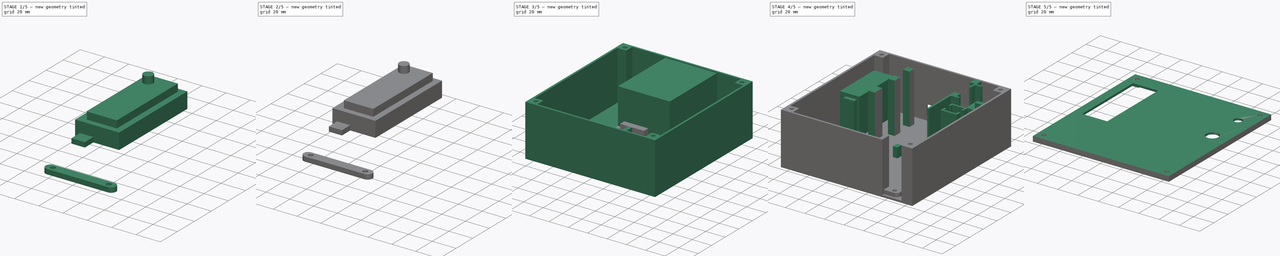
[diagram: build sequence overview — one tinted view per stage of 5, left to right]
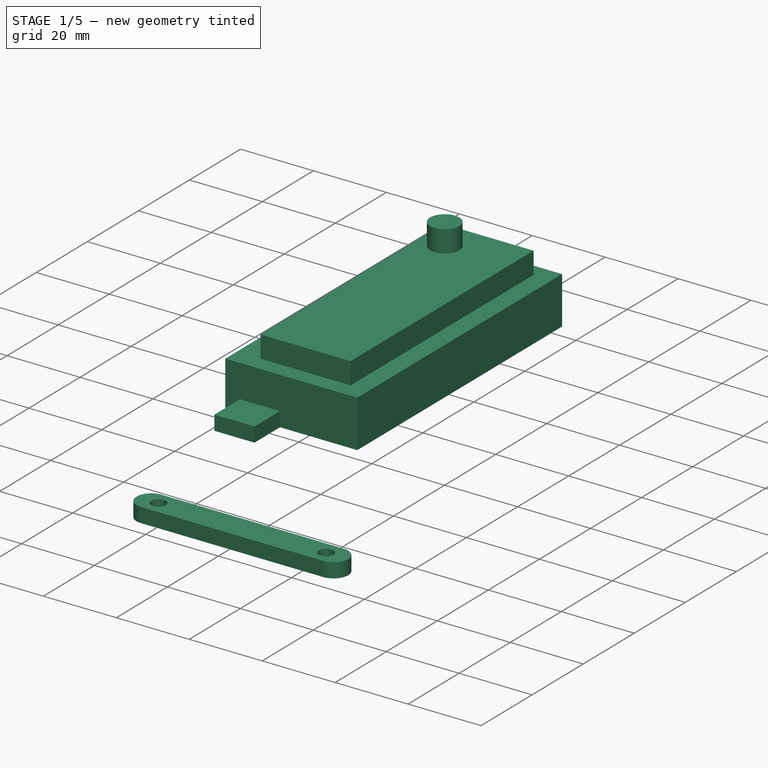
[diagram: stage 1 of 5 — iso view after this stage's code; geometry added in this stage tinted green]
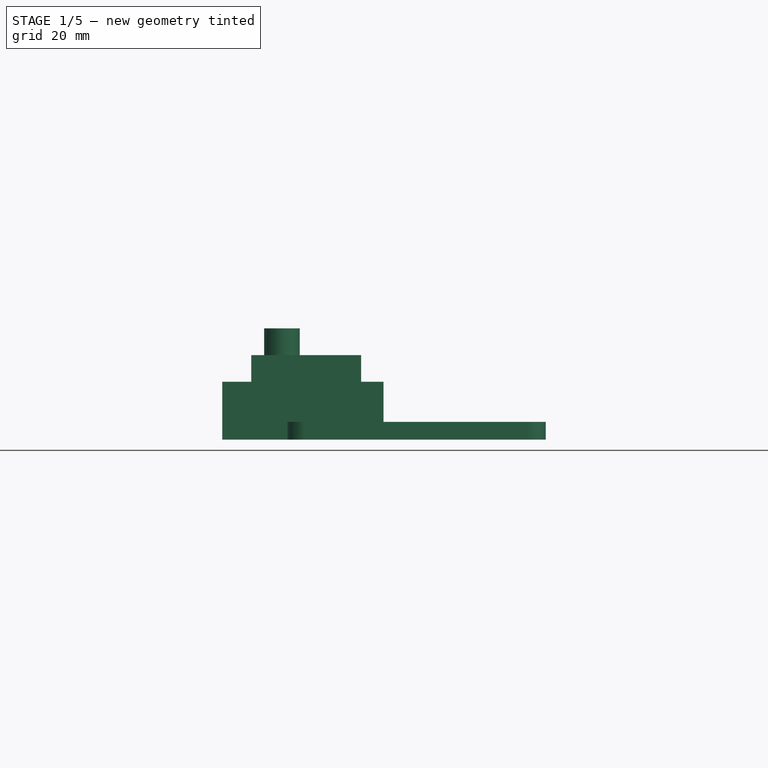
[diagram: stage 1 of 5 — front view after this stage's code; geometry added in this stage tinted green]
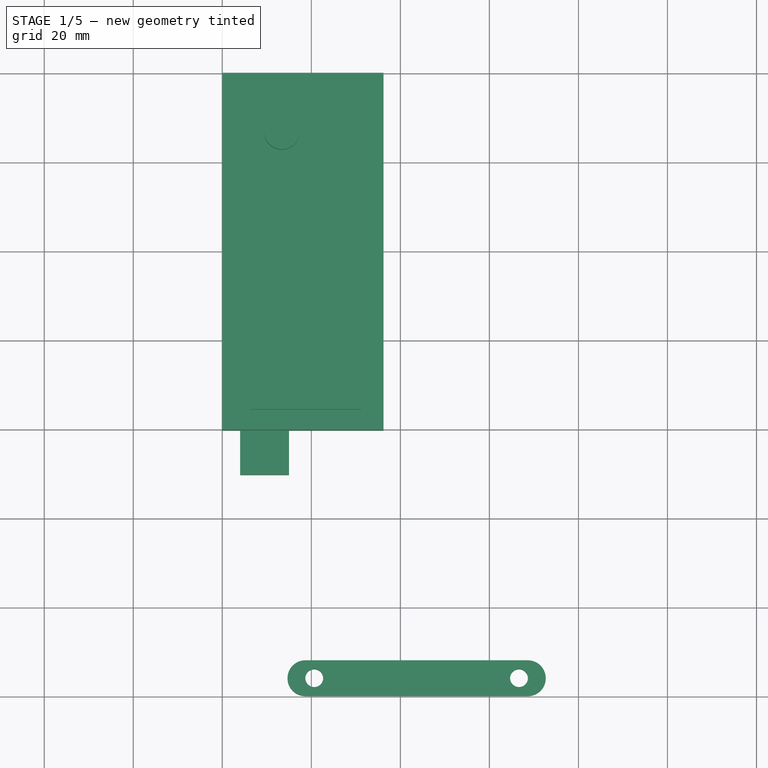
[diagram: stage 1 of 5 — top view after this stage's code; geometry added in this stage tinted green]
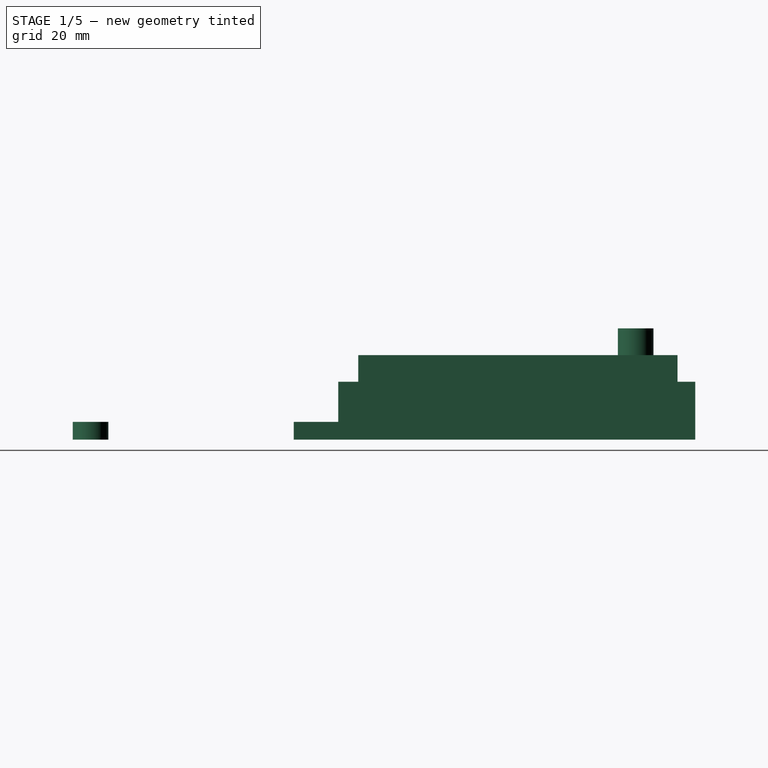
[diagram: stage 1 of 5 — right view after this stage's code; geometry added in this stage tinted green]
FCSTD DOCUMENT  (FreeCAD 1.0R39319 (Git))
Label: case
License: All rights reserved
objects: PartDesign::Pad×26, Sketcher::SketchObject×16, PartDesign::SubShapeBinder×8, PartDesign::Body×7, PartDesign::Pocket×5
note: 140 computed .brp shape members not serialized (recipe doc carries the construction recipe); baked Part::Feature solids carry a one-line shape summary decoded from their .brp

FEATURE [PartDesign::Body] Body  label="Arduino"
  AllowCompound = false
  Group = -> [Sketch,Pad,Sketch001,Pad001,Pad002,Pad003]
  Origin = -> Origin
  Tip = -> Pad003
FEATURE [Sketcher::SketchObject] Sketch002
  ArcFitTolerance = 1e-06
  AttachmentSupport = -> [XY_Plane001]
  FullyConstrained = true
  MakeInternals = false
  MapMode = 5
  sketch-geometry (13):
    g0: LineSegment StartX=0 StartY=0 StartZ=0 EndX=0 EndY=-80.2 EndZ=0
    g1: LineSegment StartX=0 StartY=-80.2 StartZ=0 EndX=4 EndY=-80.2 EndZ=0
    g2: LineSegment StartX=36.2 StartY=-80.2 StartZ=0 EndX=36.2 EndY=0 EndZ=0
    g3: LineSegment StartX=36.2 StartY=0 StartZ=0 EndX=0 EndY=0 EndZ=0
    g4: LineSegment StartX=6.5 StartY=-4 StartZ=0 EndX=6.5 EndY=-75.7 EndZ=0
    g5: LineSegment StartX=6.5 StartY=-75.7 StartZ=0 EndX=31.2 EndY=-75.7 EndZ=0
    g6: LineSegment StartX=31.2 StartY=-75.7 StartZ=0 EndX=31.2 EndY=-4 EndZ=0
    g7: LineSegment StartX=31.2 StartY=-4 StartZ=0 EndX=6.5 EndY=-4 EndZ=0
    g8: LineSegment StartX=4 StartY=-80.2 StartZ=0 EndX=4 EndY=-90.2 EndZ=0
    g9: LineSegment StartX=4 StartY=-90.2 StartZ=0 EndX=15 EndY=-90.2 EndZ=0
    g10: LineSegment StartX=15 StartY=-90.2 StartZ=0 EndX=15 EndY=-80.2 EndZ=0
    g11: LineSegment StartX=15 StartY=-80.2 StartZ=0 EndX=4 EndY=-80.2 EndZ=0
    g12: LineSegment StartX=15 StartY=-80.2 StartZ=0 EndX=36.2 EndY=-80.2 EndZ=0
  constraints (37):
    c: Coincident(g0,g1)
    c: Coincident(g12,g2)
    c: Coincident(g2,g3)
    c: Coincident(g3,g0)
    c: Vertical(g0)
    c: Vertical(g2)
    c: Horizontal(g1)
    c: Horizontal(g3)
    c: Distance(g0,g2) = 36.2
    c: Distance(g1,g3) = 80.2
    c: Coincident(g0,g-1)
    c: Coincident(g4,g5)
    c: Coincident(g5,g6)
    c: Coincident(g6,g7)
    c: Coincident(g7,g4)
    c: Vertical(g4)
    c: Vertical(g6)
    c: Horizontal(g5)
    c: Horizontal(g7)
    c: Distance(g4,g6) = 24.7
    c: Distance(g5,g7) = 71.7
    c: Distance(g2,g6) = 5
    c: Distance(g3,g7) = 4
    c: Coincident(g8,g9)
    c: Coincident(g9,g10)
    c: Coincident(g10,g11)
    c: Coincident(g11,g8)
    c: Vertical(g8)
    c: Vertical(g10)
    c: Horizontal(g9)
    c: Horizontal(g11)
    c: Distance(g8,g10) = 11
    c: Distance(g9,g11) = 10
    c: Distance(g8,g-2) = 4
    c: Coincident(g12,g10)
    c: Horizontal(g12)
    c: Coincident(g1,g8)
FEATURE [PartDesign::Pad] Pad005
  Direction = (0,0,1)
  Length = 4
  Length2 = 10
  Profile = -> Sketch002 [Edge9,Edge6,Edge7,Edge8]
  ReferenceAxis = -> Sketch002 [N_Axis]
  Refine = true
  Suppressed = false
  Type = 0
FEATURE [PartDesign::Pad] Pad006
  BaseFeature = -> Pad005
  Direction = (0,0,1)
  Length = 13
  Length2 = 10
  Profile = -> Sketch002 [Edge9,Edge5,Edge4,Edge1,Edge2,Edge3]
  ReferenceAxis = -> Sketch002 [N_Axis]
  Refine = true
  Suppressed = false
  Type = 0
FEATURE [PartDesign::Pad] Pad007
  BaseFeature = -> Pad006
  Direction = (0,0,1)
  Length = 19
  Length2 = 10
  Profile = -> Sketch002 [Edge10,Edge11,Edge12,Edge13]
  ReferenceAxis = -> Sketch002 [N_Axis]
  Refine = true
  Suppressed = false
  Type = 0
FEATURE [PartDesign::Body] Body001  label="LCD"
  AllowCompound = false
  Group = -> [Sketch002,Pad005,Pad006,Pad007]
  Origin = -> Origin001
  Placement = pos=(-43,-9,37) rot=(0,0,1;0rad)
  Tip = -> Pad007
FEATURE [Sketcher::SketchObject] Sketch003
  ArcFitTolerance = 1e-06
  AttachmentSupport = -> [XY_Plane002]
  FullyConstrained = true
  MakeInternals = false
  MapMode = 5
  sketch-geometry (17):
    g0: LineSegment StartX=0 StartY=0 StartZ=0 EndX=0 EndY=-26.8 EndZ=0
    g1: LineSegment StartX=0 StartY=-26.8 StartZ=0 EndX=26.8 EndY=-26.8 EndZ=0
    g2: LineSegment StartX=26.8 StartY=-26.8 StartZ=0 EndX=26.8 EndY=0 EndZ=0
    g3: LineSegment StartX=26.8 StartY=0 StartZ=0 EndX=0 EndY=0 EndZ=0
    g4: Circle CenterX=13.4 CenterY=-13.4 CenterZ=0 NormalX=0 NormalY=0 NormalZ=1 AngleXU=0 Radius=4
    g5: LineSegment [constr] StartX=13.4 StartY=0 StartZ=0 EndX=13.4 EndY=-26.8 EndZ=0
    g6: LineSegment [constr] StartX=0 StartY=-13.4 StartZ=0 EndX=26.8 EndY=-13.4 EndZ=0
    g7: LineSegment StartX=9.4 StartY=-0.2 StartZ=0 EndX=9.4 EndY=-5.2 EndZ=0
    g8: LineSegment StartX=9.4 StartY=-5.2 StartZ=0 EndX=17.4 EndY=-5.2 EndZ=0
    g9: LineSegment StartX=17.4 StartY=-5.2 StartZ=0 EndX=17.4 EndY=-0.2 EndZ=0
    g10: LineSegment StartX=17.4 StartY=-0.2 StartZ=0 EndX=9.4 EndY=-0.2 EndZ=0
    g11: LineSegment StartX=9.4 StartY=-21.6 StartZ=0 EndX=9.4 EndY=-26.6 EndZ=0
    g12: LineSegment StartX=9.4 StartY=-26.6 StartZ=0 EndX=17.4 EndY=-26.6 EndZ=0
    g13: LineSegment StartX=17.4 StartY=-26.6 StartZ=0 EndX=17.4 EndY=-21.6 EndZ=0
    g14: LineSegment StartX=17.4 StartY=-21.6 StartZ=0 EndX=9.4 EndY=-21.6 EndZ=0
    g15: GeomPoint [constr] X=13.4 Y=-21.6 Z=0
    g16: GeomPoint [constr] X=13.4 Y=-0.2 Z=0
  constraints (44):
    c: Coincident(g0,g1)
    c: Coincident(g1,g2)
    c: Coincident(g2,g3)
    c: Coincident(g3,g0)
    c: Vertical(g0)
    c: Vertical(g2)
    c: Horizontal(g1)
    c: Horizontal(g3)
    c: Distance(g0,g2) = 26.8
    c: Distance(g1,g3) = 26.8
    c: Coincident(g0,g-1)
    c: Diameter(g4) = 8
    c: Symmetric(g3,g3,g5)
    c: Symmetric(g1,g1,g5)
    c: Symmetric(g0,g0,g6)
    c: Symmetric(g2,g2,g6)
    c: Vertical(g4,g5)
    c: Horizontal(g4,g6)
    c: Coincident(g7,g8)
    c: Coincident(g8,g9)
    c: Coincident(g9,g10)
    c: Coincident(g10,g7)
    c: Vertical(g7)
    c: Vertical(g9)
    c: Horizontal(g8)
    c: Horizontal(g10)
    c: Coincident(g11,g12)
    c: Coincident(g12,g13)
    c: Coincident(g13,g14)
    c: Coincident(g14,g11)
    c: Vertical(g11)
    c: Vertical(g13)
    c: Horizontal(g12)
    c: Horizontal(g14)
    c: DistanceX(g8,g8) = 8
    c: Equal(g8,g14)
    c: Distance(g12,g1) = 0.2
    c: DistanceY(g11,g11) = 5
    c: Symmetric(g14,g14,g15)
    c: Symmetric(g10,g10,g16)
    c: Vertical(g15,g5)
    c: Vertical(g16,g5)
    c: Equal(g11,g9)
    c: DistanceY(g9,g-1) = 0.2
FEATURE [PartDesign::Pad] Pad008
  Direction = (0,0,1)
  Length = 9
  Length2 = 10
  Profile = -> Sketch003 [Edge4,Edge3,Edge1,Edge2]
  ReferenceAxis = -> Sketch003 [N_Axis]
  Refine = true
  Suppressed = false
  Type = 0
FEATURE [PartDesign::Pad] Pad009
  BaseFeature = -> Pad008
  Direction = (0,0,1)
  Length = 25
  Length2 = 10
  Profile = -> Sketch003 [Edge5]
  ReferenceAxis = -> Sketch003 [N_Axis]
  Refine = true
  Suppressed = false
  Type = 0
FEATURE [PartDesign::Body] Body005  label="CaseTop"
  AllowCompound = false
  Group = -> [Binder004,Sketch013,Pad025,Pocket002,Pocket003,Binder005,Binder006,Binder007,Sketch014,Pocket004]
  Origin = -> Origin005
  Placement = pos=(0,0,51) rot=(0,0,1;0rad)
  Tip = -> Pocket004
FEATURE [Sketcher::SketchObject] Sketch015
  ArcFitTolerance = 1e-06
  AttachmentSupport = -> [XY_Plane006]
  FullyConstrained = false
  MakeInternals = false
  MapMode = 5
  sketch-geometry (6):
    g0: LineSegment StartX=18.6532 StartY=-131.851 StartZ=0 EndX=68.6532 EndY=-131.851 EndZ=0
    g1: LineSegment StartX=18.6532 StartY=-139.851 StartZ=0 EndX=68.6532 EndY=-139.851 EndZ=0
    g2: ArcOfCircle CenterX=18.6532 CenterY=-135.851 CenterZ=0 NormalX=0 NormalY=0 NormalZ=1 AngleXU=0 Radius=4 StartAngle=1.5708 EndAngle=4.71239
    g3: ArcOfCircle CenterX=68.6532 CenterY=-135.851 CenterZ=0 NormalX=0 NormalY=0 NormalZ=1 AngleXU=0 Radius=4 StartAngle=4.71239 EndAngle=7.85398
    g4: Circle CenterX=20.6532 CenterY=-135.851 CenterZ=0 NormalX=0 NormalY=0 NormalZ=1 AngleXU=0 Radius=2
    g5: Circle CenterX=66.6532 CenterY=-135.851 CenterZ=0 NormalX=0 NormalY=0 NormalZ=1 AngleXU=0 Radius=2
  constraints (18):
    c: Horizontal(g0)
    c: Horizontal(g1)
    c: Vertical(g0,g1)
    c: Equal(g0,g1)
    c: Coincident(g2,g0)
    c: Coincident(g2,g1)
    c: Vertical(g2,g0)
    c: Coincident(g3,g0)
    c: Coincident(g3,g1)
    c: Vertical(g3,g0)
    c: Distance(g0,g1) = 8
    c: DistanceX(g2,g3) = 50
    c: Diameter(g4) = 4
    c: Diameter(g5) = 4
    c: Horizontal(g4,g5)
    c: Horizontal(g5,g3)
    c: DistanceX(g5,g3) = 2
    c: DistanceX(g2,g4) = 2
FEATURE [PartDesign::Pad] Pad026
  Direction = (0,0,1)
  Length = 4
  Length2 = 10
  Profile = -> Sketch015
  ReferenceAxis = -> Sketch015 [N_Axis]
  Refine = true
  Suppressed = false
  Type = 0
FEATURE [PartDesign::Body] Body006  label="cable-holder"
  AllowCompound = false
  Group = -> [Sketch015,Pad026]
  Origin = -> Origin006
  Tip = -> Pad026
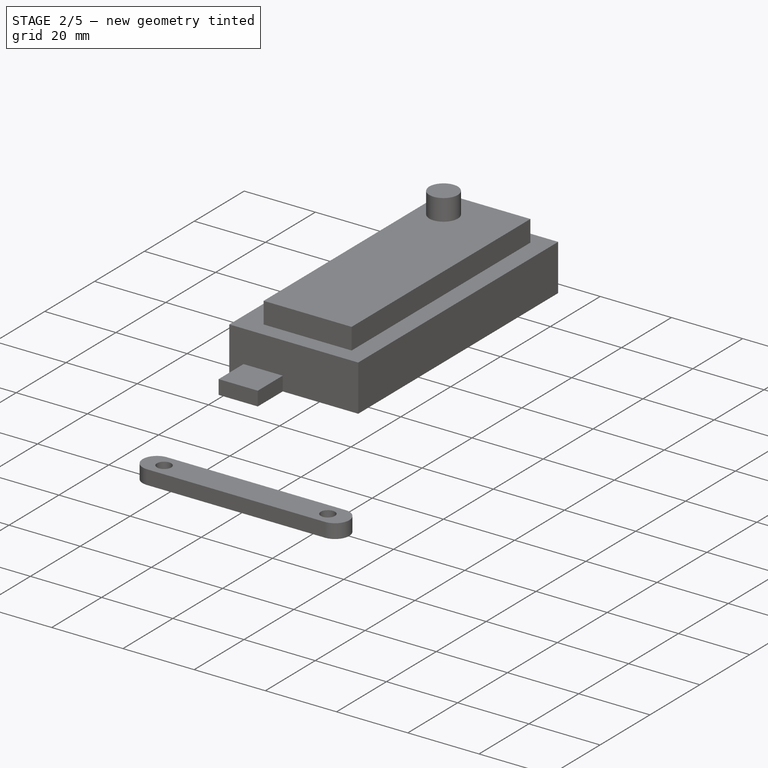
[diagram: stage 2 of 5 — iso view after this stage's code; geometry added in this stage tinted green]
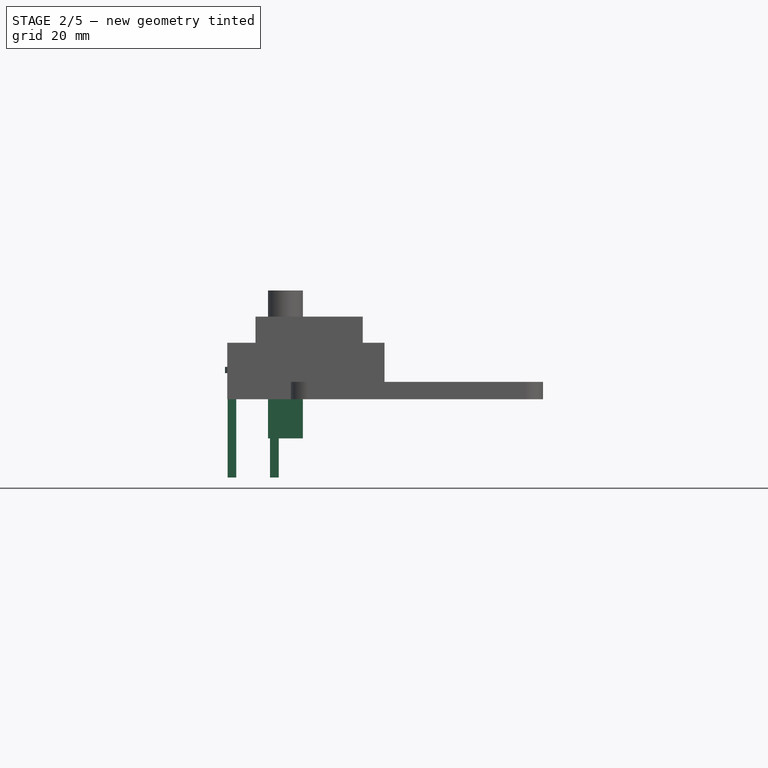
[diagram: stage 2 of 5 — front view after this stage's code; geometry added in this stage tinted green]
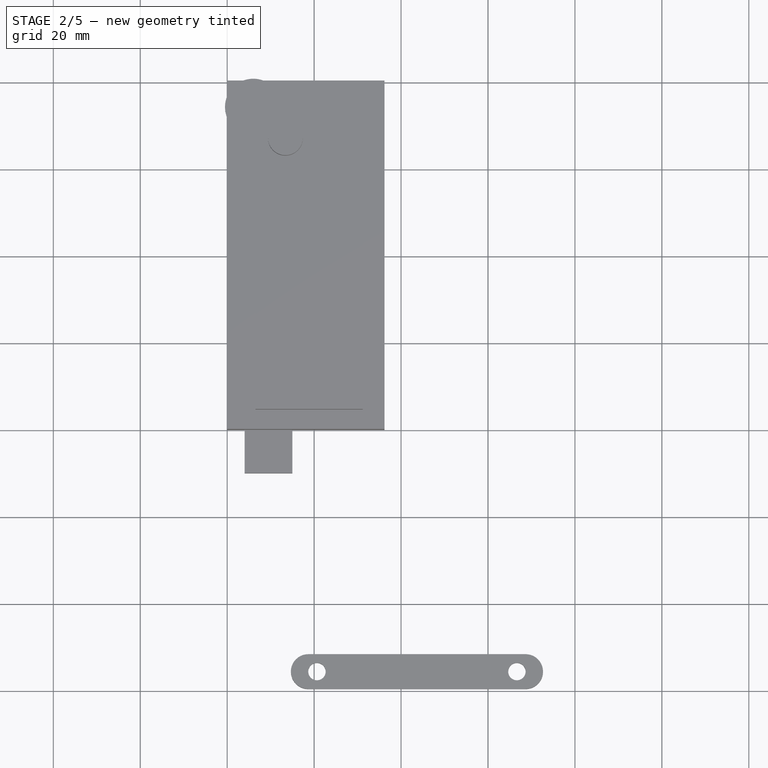
[diagram: stage 2 of 5 — top view after this stage's code; geometry added in this stage tinted green]
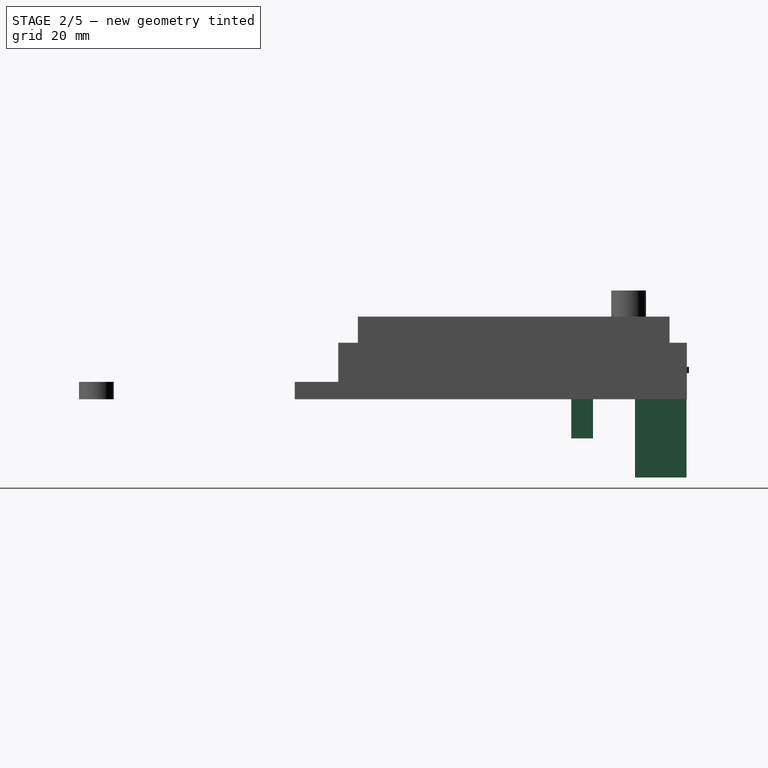
[diagram: stage 2 of 5 — right view after this stage's code; geometry added in this stage tinted green]
FEATURE [PartDesign::Pad] Pad010
  BaseFeature = -> Pad009
  Direction = (0,0,1)
  Length = 9
  Length2 = 10
  Profile = -> Sketch003 [Edge7,Edge8,Edge9,Edge6,Edge13,Edge10,Edge12,Edge11]
  ReferenceAxis = -> Sketch003 [N_Axis]
  Refine = true
  Reversed = true
  Suppressed = false
  Type = 0
FEATURE [PartDesign::Body] Body002  label="Encoder"
  AllowCompound = false
  Group = -> [Sketch003,Pad008,Pad009,Pad010]
  Origin = -> Origin002
  Placement = pos=(60,-9,41) rot=(0,0,1;0rad)
  Tip = -> Pad010
FEATURE [Sketcher::SketchObject] Sketch004
  ArcFitTolerance = 1e-06
  AttachmentSupport = -> [XY_Plane003]
  FullyConstrained = false
  MakeInternals = false
  MapMode = 5
  sketch-geometry (20):
    g0: LineSegment StartX=0 StartY=0 StartZ=0 EndX=0 EndY=-12 EndZ=0
    g1: LineSegment StartX=0 StartY=-12 StartZ=0 EndX=12 EndY=-12 EndZ=0
    g2: LineSegment StartX=12 StartY=-12 StartZ=0 EndX=12 EndY=0 EndZ=0
    g3: LineSegment StartX=12 StartY=0 StartZ=0 EndX=0 EndY=0 EndZ=0
    g4: LineSegment StartX=4 StartY=-4 StartZ=0 EndX=4 EndY=-8 EndZ=0
    g5: LineSegment StartX=4 StartY=-8 StartZ=0 EndX=8 EndY=-8 EndZ=0
    g6: LineSegment StartX=8 StartY=-8 StartZ=0 EndX=8 EndY=-4 EndZ=0
    g7: LineSegment StartX=8 StartY=-4 StartZ=0 EndX=4 EndY=-4 EndZ=0
    g8: GeomPoint X=6 Y=-4 Z=0
    g9: GeomPoint X=8 Y=-6 Z=0
    g10: GeomPoint X=12 Y=-6 Z=0
    g11: GeomPoint X=6 Y=-12 Z=0
    g12: LineSegment StartX=0.0979159 StartY=-0.139029 StartZ=0 EndX=0.0979159 EndY=-11.939 EndZ=0
    g13: LineSegment StartX=0.0979159 StartY=-11.939 StartZ=0 EndX=2.09792 EndY=-11.939 EndZ=0
    g14: LineSegment StartX=2.09792 StartY=-11.939 StartZ=0 EndX=2.09792 EndY=-0.139029 EndZ=0
    g15: LineSegment StartX=2.09792 StartY=-0.139029 StartZ=0 EndX=0.0979159 EndY=-0.139029 EndZ=0
    g16: LineSegment StartX=9.8528 StartY=-0.091351 StartZ=0 EndX=9.8528 EndY=-11.8914 EndZ=0
    g17: LineSegment StartX=9.8528 StartY=-11.8914 StartZ=0 EndX=11.8528 EndY=-11.8914 EndZ=0
    g18: LineSegment StartX=11.8528 StartY=-11.8914 StartZ=0 EndX=11.8528 EndY=-0.091351 EndZ=0
    g19: LineSegment StartX=11.8528 StartY=-0.091351 StartZ=0 EndX=9.8528 EndY=-0.091351 EndZ=0
  constraints (47):
    c: Coincident(g0,g1)
    c: Coincident(g1,g2)
    c: Coincident(g2,g3)
    c: Coincident(g3,g0)
    c: Vertical(g0)
    c: Vertical(g2)
    c: Horizontal(g1)
    c: Horizontal(g3)
    c: Distance(g0,g2) = 12
    c: Distance(g1,g3) = 12
    c: Coincident(g0,g-1)
    c: Coincident(g4,g5)
    c: Coincident(g5,g6)
    c: Coincident(g6,g7)
    c: Coincident(g7,g4)
    c: Vertical(g4)
    c: Vertical(g6)
    c: Horizontal(g5)
    c: Horizontal(g7)
    c: Distance(g4,g6) = 4
    c: Distance(g5,g7) = 4
    c: Symmetric(g7,g7,g8)
    c: Symmetric(g6,g6,g9)
    c: Symmetric(g2,g2,g10)
    c: Symmetric(g1,g1,g11)
    c: Vertical(g8,g11)
    c: Horizontal(g9,g10)
    c: Coincident(g12,g13)
    c: Coincident(g13,g14)
    c: Coincident(g14,g15)
    c: Coincident(g15,g12)
    c: Vertical(g12)
    c: Vertical(g14)
    c: Horizontal(g13)
    c: Horizontal(g15)
    c: Distance(g12,g14) = 2
    c: Distance(g13,g15) = 11.8
    c: Coincident(g16,g17)
    c: Coincident(g17,g18)
    c: Coincident(g18,g19)
    c: Coincident(g19,g16)
    c: Vertical(g16)
    c: Vertical(g18)
    c: Horizontal(g17)
    c: Horizontal(g19)
    c: Distance(g16,g18) = 2
    c: Distance(g17,g19) = 11.8
FEATURE [PartDesign::Pad] Pad011
  Direction = (0,0,1)
  Length = 4
  Length2 = 10
  Profile = -> Sketch004 [Edge1,Edge2,Edge3,Edge4]
  ReferenceAxis = -> Sketch004 [N_Axis]
  Refine = true
  Suppressed = false
  Type = 0
FEATURE [PartDesign::Pad] Pad012
  BaseFeature = -> Pad011
  Direction = (0,0,1)
  Length = 10
  Length2 = 10
  Profile = -> Sketch004 [Edge5,Edge6,Edge8,Edge7]
  ReferenceAxis = -> Sketch004 [N_Axis]
  Refine = true
  Suppressed = false
  Type = 0
FEATURE [PartDesign::Pad] Pad013
  BaseFeature = -> Pad012
  Direction = (0,0,1)
  Length = 18
  Length2 = 10
  Profile = -> Sketch004 [Edge11,Edge10,Edge9,Edge12,Edge14,Edge13,Edge15,Edge16]
  ReferenceAxis = -> Sketch004 [N_Axis]
  Refine = true
  Reversed = true
  Suppressed = false
  Type = 0
FEATURE [PartDesign::Body] Body004  label="Case"
  AllowCompound = false
  Group = -> [Sketch005,Pad014,Pad015,Sketch006,Pad016,Binder,Binder001,Binder002,Binder003,Sketch007,Sketch008,Pad017,Pad018,Pad019,Pad020,Sketch009,Pocket,Sketch010,Pocket001,Pad021,Sketch011,Pad022]
  Origin = -> Origin004
  Tip = -> Pad022
FEATURE [Sketcher::SketchObject] Sketch012
  ArcFitTolerance = 1e-06
  AttachmentOffset = pos=(0,0,6) rot=(0,0,1;0rad)
  AttachmentSupport = -> [XY_Plane003]
  ExternalGeometry = -> [Pad013]
  FullyConstrained = true
  MakeInternals = false
  MapMode = 5
  Placement = pos=(0,0,6) rot=(0,0,1;0rad)
  sketch-geometry (4):
    g0: Circle CenterX=6 CenterY=-6 CenterZ=0 NormalX=0 NormalY=0 NormalZ=1 AngleXU=0 Radius=6.5
    g1: GeomPoint [constr] X=6 Y=-4 Z=0
    g2: GeomPoint [constr] X=8 Y=-6 Z=0
    g3: Circle CenterX=6 CenterY=-6 CenterZ=0 NormalX=0 NormalY=0 NormalZ=1 AngleXU=0 Radius=6
  constraints (7):
    c: Symmetric(g-4,g-4,g1)
    c: Symmetric(g-5,g-5,g2)
    c: Horizontal(g0,g2)
    c: Vertical(g0,g1)
    c: Diameter(g0) = 13
    c: Diameter(g3) = 12
    c: Coincident(g3,g0)
FEATURE [PartDesign::Pad] Pad023
  BaseFeature = -> Pad013
  Direction = (0,0,1)
  Length = 1.43
  Length2 = 10
  Profile = -> Sketch012 [Edge1]
  ReferenceAxis = -> Sketch012 [N_Axis]
  Refine = true
  Suppressed = false
  Type = 0
FEATURE [PartDesign::Pad] Pad024
  BaseFeature = -> Pad023
  Direction = (0,0,1)
  Length = 5.8
  Length2 = 10
  Profile = -> Sketch012 [Edge2]
  ReferenceAxis = -> Sketch012 [N_Axis]
  Refine = true
  Suppressed = false
  Type = 0
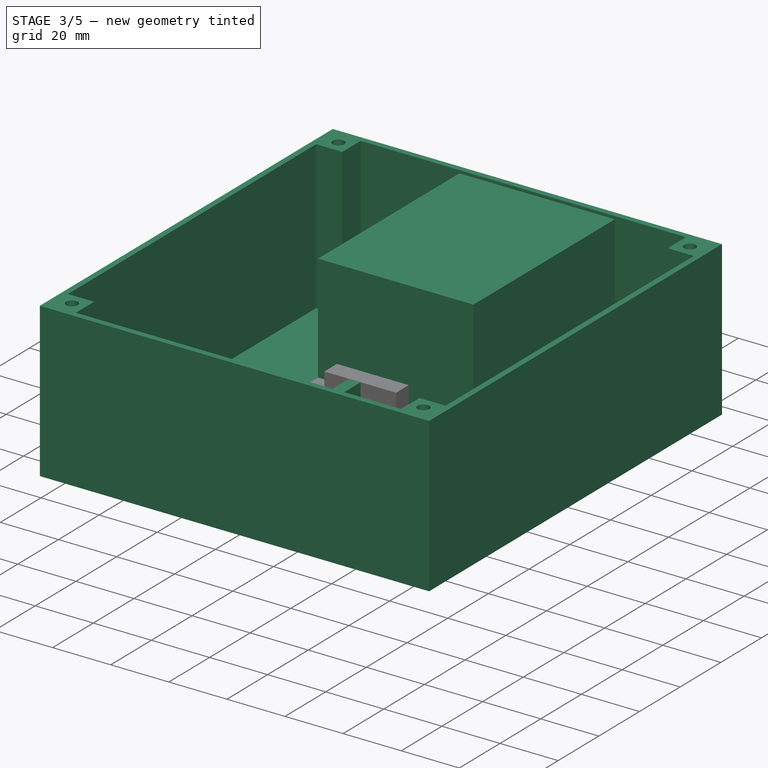
[diagram: stage 3 of 5 — iso view after this stage's code; geometry added in this stage tinted green]
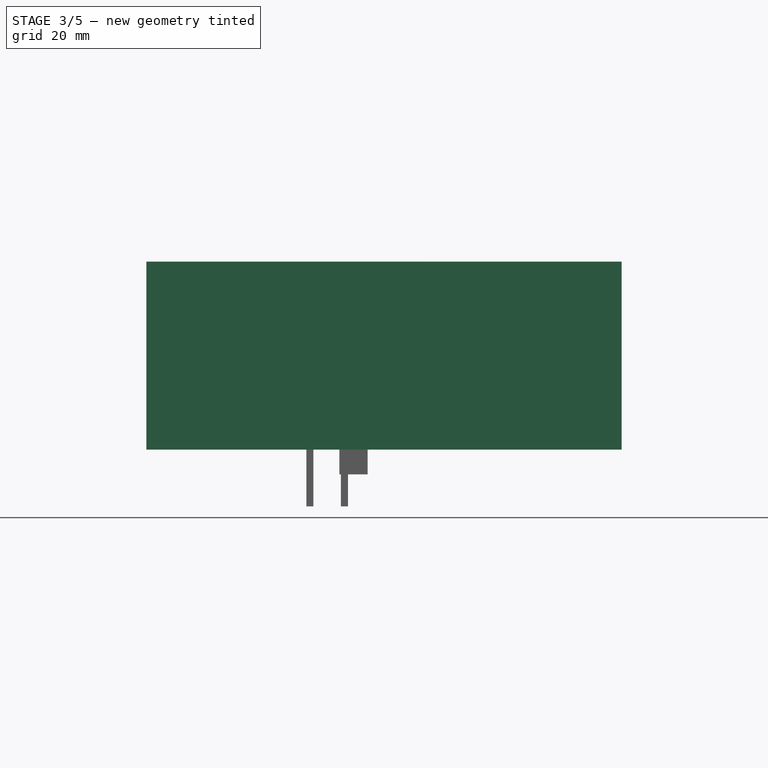
[diagram: stage 3 of 5 — front view after this stage's code; geometry added in this stage tinted green]
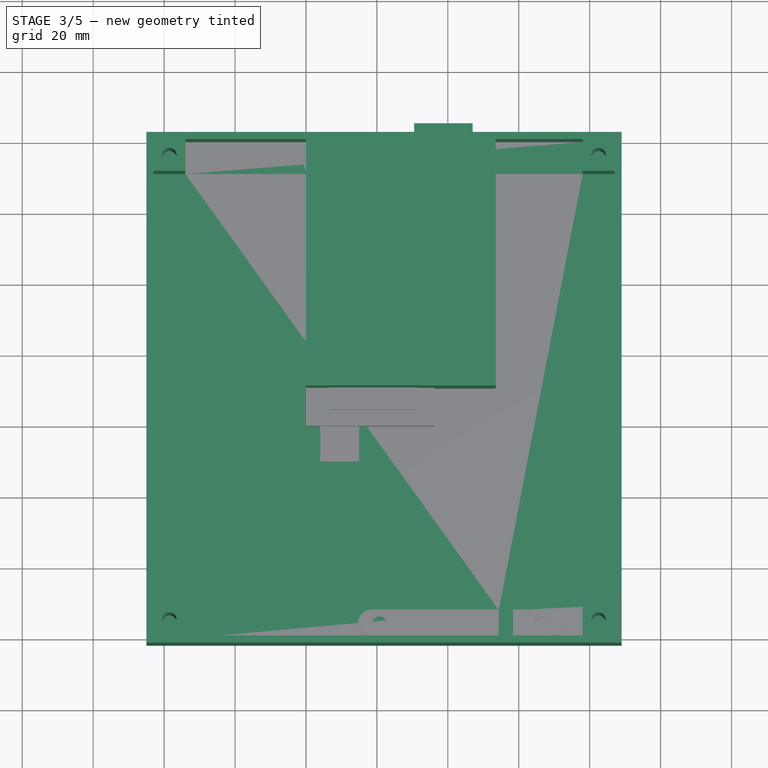
[diagram: stage 3 of 5 — top view after this stage's code; geometry added in this stage tinted green]
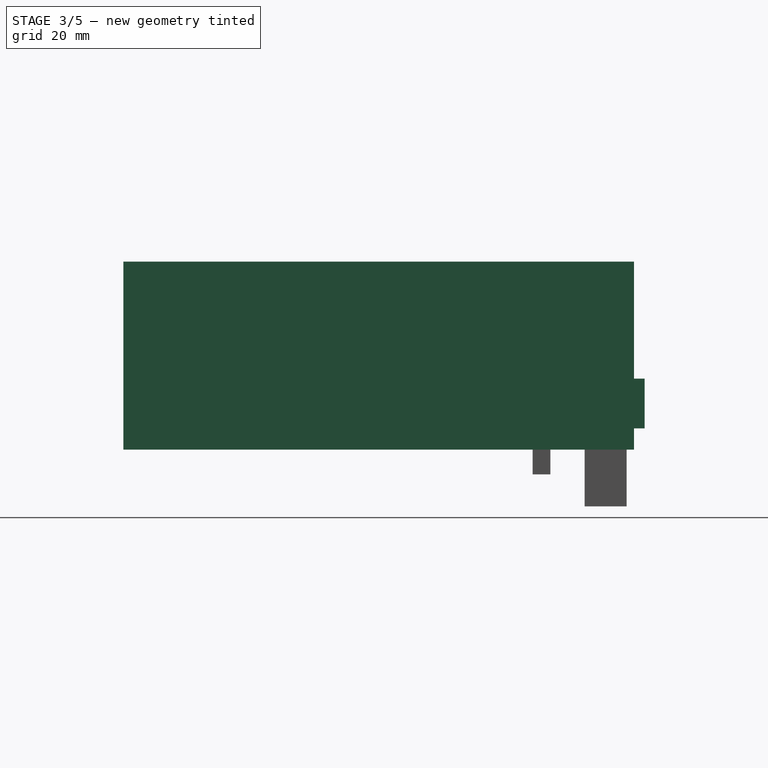
[diagram: stage 3 of 5 — right view after this stage's code; geometry added in this stage tinted green]
FEATURE [Sketcher::SketchObject] Sketch
  ArcFitTolerance = 1e-06
  AttachmentSupport = -> [XY_Plane]
  FullyConstrained = true
  MakeInternals = false
  MapMode = 5
  sketch-geometry (16):
    g0: LineSegment StartX=0 StartY=0 StartZ=0 EndX=0 EndY=-69.5 EndZ=0
    g1: LineSegment StartX=0 StartY=-69.5 StartZ=0 EndX=53.5 EndY=-69.5 EndZ=0
    g2: LineSegment StartX=53.5 StartY=-69.5 StartZ=0 EndX=53.5 EndY=0 EndZ=0
    g3: LineSegment StartX=53.5 StartY=0 StartZ=0 EndX=0 EndY=0 EndZ=0
    g4: LineSegment StartX=30.5 StartY=0 StartZ=0 EndX=47 EndY=0 EndZ=0
    g5: LineSegment StartX=47 StartY=0 StartZ=0 EndX=47 EndY=4 EndZ=0
    g6: LineSegment StartX=47 StartY=4 StartZ=0 EndX=30.5 EndY=4 EndZ=0
    g7: LineSegment StartX=30.5 StartY=4 StartZ=0 EndX=30.5 EndY=0 EndZ=0
    g8: LineSegment StartX=4 StartY=0 StartZ=0 EndX=13 EndY=0 EndZ=0
    g9: LineSegment StartX=13 StartY=0 StartZ=0 EndX=13 EndY=2 EndZ=0
    g10: LineSegment StartX=13 StartY=2 StartZ=0 EndX=4 EndY=2 EndZ=0
    g11: LineSegment StartX=4 StartY=2 StartZ=0 EndX=4 EndY=0 EndZ=0
    g12: LineSegment StartX=18 StartY=0 StartZ=0 EndX=28 EndY=0 EndZ=0
    g13: LineSegment StartX=28 StartY=0 StartZ=0 EndX=28 EndY=2 EndZ=0
    g14: LineSegment StartX=28 StartY=2 StartZ=0 EndX=18 EndY=2 EndZ=0
    g15: LineSegment StartX=18 StartY=2 StartZ=0 EndX=18 EndY=0 EndZ=0
  constraints (47):
    c: Coincident(g0,g1)
    c: Coincident(g1,g2)
    c: Coincident(g2,g3)
    c: Coincident(g3,g0)
    c: Vertical(g0)
    c: Vertical(g2)
    c: Horizontal(g1)
    c: Horizontal(g3)
    c: Distance(g0,g2) = 53.5
    c: Distance(g1,g3) = 69.5
    c: Coincident(g0,g-1)
    c: Coincident(g4,g5)
    c: Coincident(g5,g6)
    c: Coincident(g6,g7)
    c: Coincident(g7,g4)
    c: Horizontal(g4)
    c: Horizontal(g6)
    c: Vertical(g5)
    c: Vertical(g7)
    c: Distance(g5,g7) = 16.5
    c: Distance(g4,g6) = 4
    c: Horizontal(g2,g4)
    c: DistanceX(g5,g2) = 6.5
    c: Coincident(g8,g9)
    c: Coincident(g9,g10)
    c: Coincident(g10,g11)
    c: Coincident(g11,g8)
    c: Horizontal(g8)
    c: Horizontal(g10)
    c: Vertical(g9)
    c: Vertical(g11)
    c: Distance(g9,g11) = 9
    c: Distance(g8,g10) = 2
    c: Horizontal(g8,g0)
    c: DistanceX(g0,g10) = 4
    c: Coincident(g12,g13)
    c: Coincident(g13,g14)
    c: Coincident(g14,g15)
    c: Coincident(g15,g12)
    c: Horizontal(g12)
    c: Horizontal(g14)
    c: Vertical(g13)
    c: Vertical(g15)
    c: Distance(g13,g15) = 10
    c: Distance(g12,g14) = 2
    c: Horizontal(g12,g0)
    c: DistanceX(g-1,g13) = 28
FEATURE [PartDesign::Pad] Pad
  Direction = (0,0,1)
  Length = 50
  Length2 = 10
  Profile = -> Sketch [Edge1,Edge4,Edge3,Edge2]
  ReferenceAxis = -> Sketch [N_Axis]
  Refine = true
  Suppressed = false
  Type = 0
FEATURE [Sketcher::SketchObject] Sketch001
  ArcFitTolerance = 1e-06
  AttachmentSupport = -> [Pad]
  ExternalGeometry = -> [Sketch]
  FullyConstrained = true
  MakeInternals = false
  MapMode = 5
  Placement = pos=(0,0,0) rot=(0,0.707107,0.707107;3.14159rad)
  sketch-geometry (12):
    g0: LineSegment StartX=-47 StartY=18 StartZ=0 EndX=-47 EndY=4 EndZ=0
    g1: LineSegment StartX=-47 StartY=4 StartZ=0 EndX=-30.5 EndY=4 EndZ=0
    g2: LineSegment StartX=-30.5 StartY=4 StartZ=0 EndX=-30.5 EndY=18 EndZ=0
    g3: LineSegment StartX=-30.5 StartY=18 StartZ=0 EndX=-47 EndY=18 EndZ=0
    g4: LineSegment StartX=-28 StartY=8 StartZ=0 EndX=-28 EndY=4 EndZ=0
    g5: LineSegment StartX=-28 StartY=4 StartZ=0 EndX=-18 EndY=4 EndZ=0
    g6: LineSegment StartX=-18 StartY=4 StartZ=0 EndX=-18 EndY=8 EndZ=0
    g7: LineSegment StartX=-18 StartY=8 StartZ=0 EndX=-28 EndY=8 EndZ=0
    g8: LineSegment StartX=-13 StartY=15 StartZ=0 EndX=-13 EndY=4 EndZ=0
    g9: LineSegment StartX=-13 StartY=4 StartZ=0 EndX=-4 EndY=4 EndZ=0
    g10: LineSegment StartX=-4 StartY=4 StartZ=0 EndX=-4 EndY=15 EndZ=0
    g11: LineSegment StartX=-4 StartY=15 StartZ=0 EndX=-13 EndY=15 EndZ=0
  constraints (36):
    c: Coincident(g0,g1)
    c: Coincident(g1,g2)
    c: Coincident(g2,g3)
    c: Coincident(g3,g0)
    c: Vertical(g0)
    c: Vertical(g2)
    c: Horizontal(g1)
    c: Horizontal(g3)
    c: Coincident(g4,g5)
    c: Coincident(g5,g6)
    c: Coincident(g6,g7)
    c: Coincident(g7,g4)
    c: Vertical(g4)
    c: Vertical(g6)
    c: Horizontal(g5)
    c: Horizontal(g7)
    c: Coincident(g8,g9)
    c: Coincident(g9,g10)
    c: Coincident(g10,g11)
    c: Coincident(g11,g8)
    c: Vertical(g8)
    c: Vertical(g10)
    c: Horizontal(g9)
    c: Horizontal(g11)
    c: Horizontal(g0,g4)
    c: Horizontal(g4,g8)
    c: Vertical(g0,g-3)
    c: Vertical(g1,g-3)
    c: Vertical(g4,g-4)
    c: Vertical(g5,g-4)
    c: Vertical(g8,g-5)
    c: Vertical(g9,g-5)
    c: Distance(g-1,g1) = 4
    c: DistanceY(g0,g0) = 14
    c: Distance(g10,g10) = 11
    c: DistanceY(g6,g6) = 4
FEATURE [PartDesign::Pad] Pad001
  BaseFeature = -> Pad
  Direction = (0,1,-2e-16)
  Length = 5
  Length2 = 10
  Profile = -> Sketch001 [Edge1,Edge4,Edge3,Edge2]
  ReferenceAxis = -> Sketch001 [N_Axis]
  Refine = true
  Suppressed = false
  Type = 0
FEATURE [PartDesign::Pad] Pad002
  BaseFeature = -> Pad001
  Direction = (0,1,-2e-16)
  Length = 2
  Length2 = 10
  Profile = -> Sketch001 [Edge8,Edge5,Edge6,Edge7]
  ReferenceAxis = -> Sketch001 [N_Axis]
  Refine = true
  Suppressed = false
  Type = 0
FEATURE [PartDesign::Pad] Pad003
  BaseFeature = -> Pad002
  Direction = (0,1,-2e-16)
  Length = 2
  Length2 = 10
  Profile = -> Sketch001 [Edge9,Edge11,Edge12,Edge10]
  ReferenceAxis = -> Sketch001 [N_Axis]
  Refine = true
  Suppressed = false
  Type = 0
FEATURE [Sketcher::SketchObject] Sketch005
  ArcFitTolerance = 1e-06
  AttachmentSupport = -> [XY_Plane004]
  FullyConstrained = true
  MakeInternals = false
  MapMode = 5
  expr: Constraints[21] = .Constraints.thin
  expr: Constraints[22] = .Constraints.thin
  expr: Constraints[23] = .Constraints.thin
  sketch-geometry (8):
    g0: LineSegment StartX=-43 StartY=0 StartZ=0 EndX=-43 EndY=-140 EndZ=0
    g1: LineSegment StartX=-43 StartY=-140 StartZ=0 EndX=87 EndY=-140 EndZ=0
    g2: LineSegment StartX=87 StartY=-140 StartZ=0 EndX=87 EndY=0 EndZ=0
    g3: LineSegment StartX=87 StartY=0 StartZ=0 EndX=-43 EndY=0 EndZ=0
    g4: LineSegment StartX=-45 StartY=2 StartZ=0 EndX=-45 EndY=-142 EndZ=0
    g5: LineSegment StartX=-45 StartY=-142 StartZ=0 EndX=89 EndY=-142 EndZ=0
    g6: LineSegment StartX=89 StartY=-142 StartZ=0 EndX=89 EndY=2 EndZ=0
    g7: LineSegment StartX=89 StartY=2 StartZ=0 EndX=-45 EndY=2 EndZ=0
  constraints (24):
    c: Coincident(g0,g1)
    c: Coincident(g1,g2)
    c: Coincident(g2,g3)
    c: Coincident(g3,g0)
    c: Vertical(g0)
    c: Vertical(g2)
    c: Horizontal(g1)
    c: Horizontal(g3)
    c: Distance(g0,g2) = 130
    c: Distance(g1,g3) = 140
    c: PointOnObject(g0,g-1)
    c: DistanceX(g0,g-1) = 43
    c: Coincident(g4,g5)
    c: Coincident(g5,g6)
    c: Coincident(g6,g7)
    c: Coincident(g7,g4)
    c: Vertical(g4)
    c: Vertical(g6)
    c: Horizontal(g5)
    c: Horizontal(g7)
    c: Distance(g2,g6) = 2  'thin'
    c: Distance(g5,g1) = 2
    c: Distance(g4,g0) = 2
    c: Distance(g3,g7) = 2
FEATURE [PartDesign::Pad] Pad014  label="bottom"
  Direction = (0,0,1)
  Length = 2
  Length2 = 10
  Profile = -> Sketch005 [Edge5,Edge6,Edge8,Edge7]
  ReferenceAxis = -> Sketch005 [N_Axis]
  Refine = true
  Reversed = true
  Suppressed = false
  Type = 0
FEATURE [PartDesign::Pad] Pad015  label="walls"
  BaseFeature = -> Pad014
  Direction = (0,0,1)
  Length = 51
  Length2 = 10
  Profile = -> Sketch005
  ReferenceAxis = -> Sketch005 [N_Axis]
  Refine = true
  Suppressed = false
  Type = 0
FEATURE [Sketcher::SketchObject] Sketch006
  ArcFitTolerance = 1e-06
  AttachmentSupport = -> [XY_Plane004]
  ExternalGeometry = -> [Pad015]
  FullyConstrained = false
  MakeInternals = false
  MapMode = 5
  sketch-geometry (28):
    g0: LineSegment StartX=-43 StartY=0 StartZ=0 EndX=-43 EndY=-9 EndZ=0
    g1: LineSegment StartX=-43 StartY=-9 StartZ=0 EndX=-34 EndY=-9 EndZ=0
    g2: LineSegment StartX=-34 StartY=-9 StartZ=0 EndX=-34 EndY=0 EndZ=0
    g3: LineSegment StartX=-34 StartY=0 StartZ=0 EndX=-43 EndY=0 EndZ=0
    g4: LineSegment StartX=87 StartY=0 StartZ=0 EndX=78 EndY=0 EndZ=0
    g5: LineSegment StartX=78 StartY=0 StartZ=0 EndX=78 EndY=-9 EndZ=0
    g6: LineSegment StartX=78 StartY=-9 StartZ=0 EndX=87 EndY=-9 EndZ=0
    g7: LineSegment StartX=87 StartY=-9 StartZ=0 EndX=87 EndY=0 EndZ=0
    g8: LineSegment StartX=-43 StartY=-140 StartZ=0 EndX=-34 EndY=-140 EndZ=0
    g9: LineSegment StartX=-34 StartY=-140 StartZ=0 EndX=-34 EndY=-131 EndZ=0
    g10: LineSegment StartX=-34 StartY=-131 StartZ=0 EndX=-43 EndY=-131 EndZ=0
    g11: LineSegment StartX=-43 StartY=-131 StartZ=0 EndX=-43 EndY=-140 EndZ=0
    g12: LineSegment StartX=87 StartY=-140 StartZ=0 EndX=87 EndY=-131 EndZ=0
    g13: LineSegment StartX=87 StartY=-131 StartZ=0 EndX=78 EndY=-131 EndZ=0
    g14: LineSegment StartX=78 StartY=-131 StartZ=0 EndX=78 EndY=-140 EndZ=0
    g15: LineSegment StartX=78 StartY=-140 StartZ=0 EndX=87 EndY=-140 EndZ=0
    g16: GeomPoint [constr] X=-38.5 Y=-9 Z=0
    g17: GeomPoint [constr] X=-34 Y=-4.5 Z=0
    g18: GeomPoint [constr] X=82.5 Y=-131 Z=0
    g19: GeomPoint [constr] X=78 Y=-135.5 Z=0
    g20: Circle CenterX=-38.5 CenterY=-4.5 CenterZ=0 NormalX=0 NormalY=0 NormalZ=1 AngleXU=0 Radius=2
    g21: Circle CenterX=82.5 CenterY=-4.5 CenterZ=0 NormalX=0 NormalY=0 NormalZ=1 AngleXU=0 Radius=2
    g22: Circle CenterX=82.5 CenterY=-135.5 CenterZ=0 NormalX=0 NormalY=0 NormalZ=1 AngleXU=0 Radius=2
    g23: Circle CenterX=-38.5 CenterY=-135.5 CenterZ=0 NormalX=0 NormalY=0 NormalZ=1 AngleXU=0 Radius=2
    g24: LineSegment StartX=58.3729 StartY=-140 StartZ=0 EndX=58.3729 EndY=-132 EndZ=0
    g25: LineSegment StartX=58.3729 StartY=-132 StartZ=0 EndX=54.3729 EndY=-132 EndZ=0
    g26: LineSegment StartX=54.3729 StartY=-132 StartZ=0 EndX=54.3729 EndY=-140 EndZ=0
    g27: LineSegment StartX=54.3729 StartY=-140 StartZ=0 EndX=58.3729 EndY=-140 EndZ=0
  constraints (71):
    c: Coincident(g0,g1)
    c: Coincident(g1,g2)
    c: Coincident(g2,g3)
    c: Coincident(g3,g0)
    c: Vertical(g0)
    c: Vertical(g2)
    c: Horizontal(g1)
    c: Horizontal(g3)
    c: Distance(g0,g2) = 9
    c: Distance(g1,g3) = 9
    c: Coincident(g0,g-4)
    c: Coincident(g4,g5)
    c: Coincident(g5,g6)
    c: Coincident(g6,g7)
    c: Coincident(g7,g4)
    c: Horizontal(g4)
    c: Horizontal(g6)
    c: Vertical(g5)
    c: Vertical(g7)
    c: Distance(g5,g7) = 9
    c: Distance(g4,g6) = 9
    c: Coincident(g4,g-6)
    c: Coincident(g8,g9)
    c: Coincident(g9,g10)
    c: Coincident(g10,g11)
    c: Coincident(g11,g8)
    c: Horizontal(g8)
    c: Horizontal(g10)
    c: Vertical(g9)
    c: Vertical(g11)
    c: Distance(g9,g11) = 9
    c: Distance(g8,g10) = 9
    c: Coincident(g8,g-5)
    c: Coincident(g12,g13)
    c: Coincident(g13,g14)
    c: Coincident(g14,g15)
    c: Coincident(g15,g12)
    c: Vertical(g12)
    c: Vertical(g14)
    c: Horizontal(g13)
    c: Horizontal(g15)
    c: Distance(g12,g14) = 9
    c: Distance(g13,g15) = 9
    c: Coincident(g12,g-6)
    c: Symmetric(g1,g1,g16)
    c: Symmetric(g2,g2,g17)
    c: Symmetric(g13,g13,g18)
    c: Symmetric(g14,g14,g19)
    c: Diameter(g20) = 4
    c: Vertical(g20,g16)
    c: Horizontal(g17,g20)
    c: Diameter(g21) = 4
    c: Diameter(g22) = 4
    c: Diameter(g23) = 4
    c: Horizontal(g19,g23)
    c: Vertical(g23,g16)
    c: Horizontal(g22,g19)
    c: Vertical(g22,g18)
    c: Horizontal(g21,g17)
    c: Vertical(g21,g18)
    c: Coincident(g24,g25)
    c: Coincident(g25,g26)
    c: Coincident(g26,g27)
    c: Coincident(g27,g24)
    c: Vertical(g24)
    c: Vertical(g26)
    c: Horizontal(g25)
    c: Horizontal(g27)
    c: Distance(g24,g26) = 4
    c: Distance(g25,g27) = 8
    c: PointOnObject(g24,g-5)
FEATURE [PartDesign::Pad] Pad016  label="bolt-holder"
  BaseFeature = -> Pad015
  Direction = (0,0,1)
  Length = 10
  Length2 = 10
  Profile = -> Sketch006
  ReferenceAxis = -> Sketch006 [N_Axis]
  Refine = true
  Suppressed = false
  Type = 3
  UpToFace = -> Pad015 [Face3]
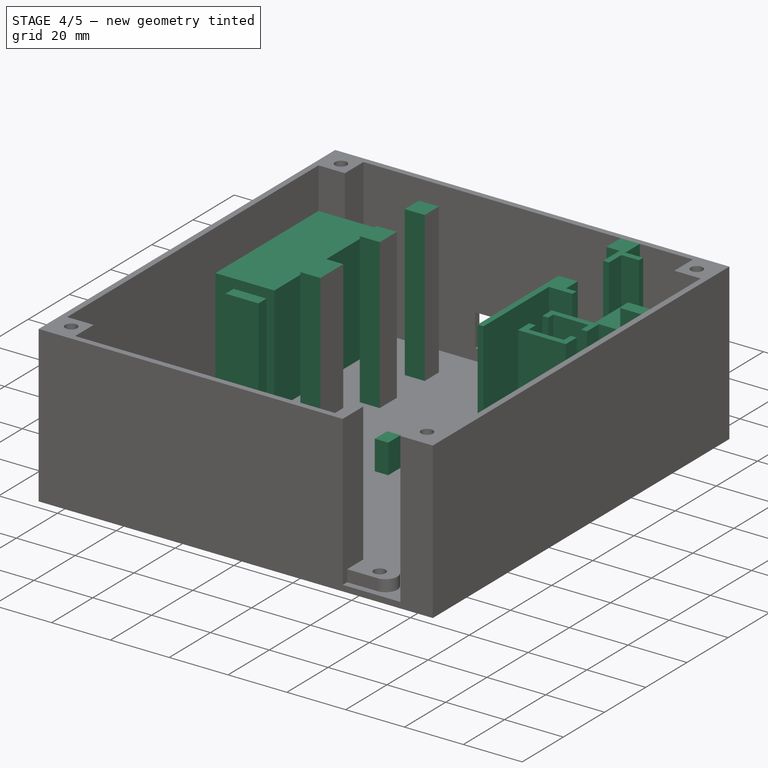
[diagram: stage 4 of 5 — iso view after this stage's code; geometry added in this stage tinted green]
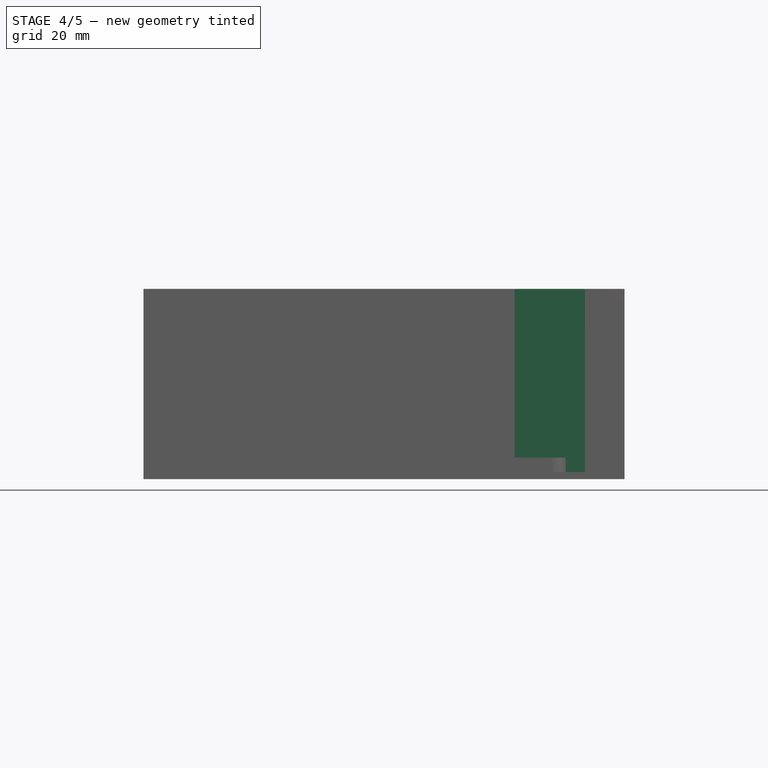
[diagram: stage 4 of 5 — front view after this stage's code; geometry added in this stage tinted green]
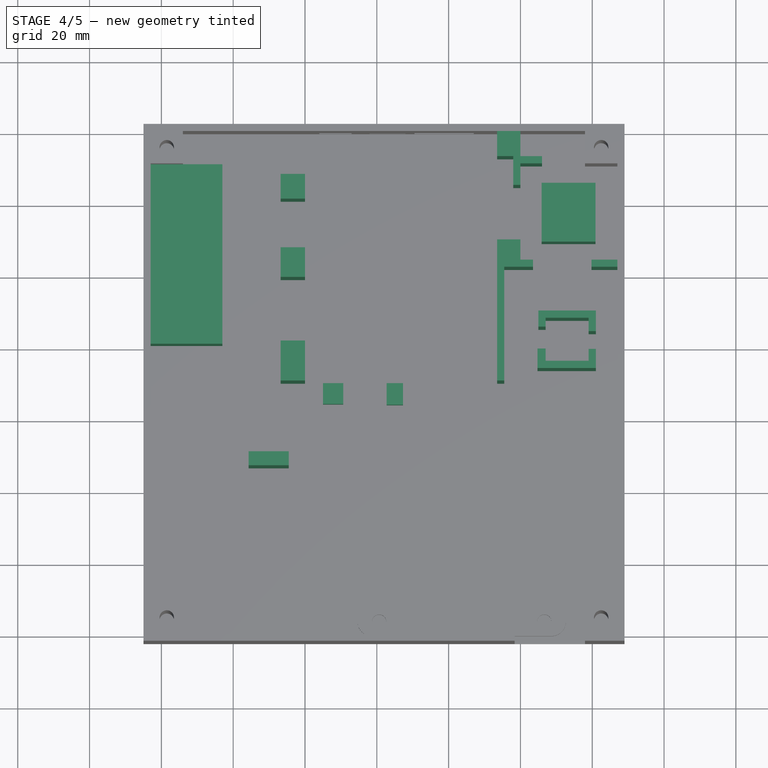
[diagram: stage 4 of 5 — top view after this stage's code; geometry added in this stage tinted green]
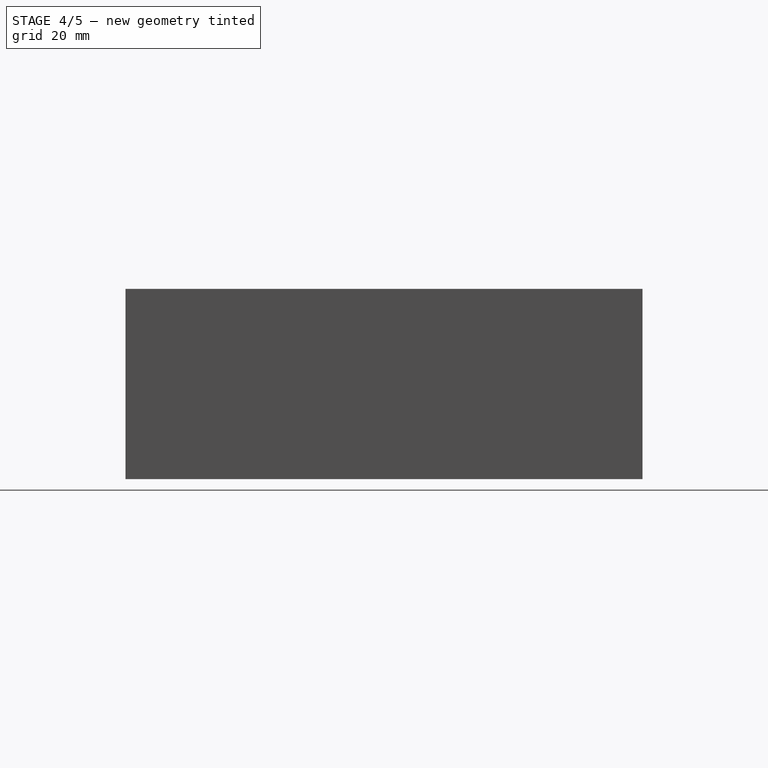
[diagram: stage 4 of 5 — right view after this stage's code; geometry added in this stage tinted green]
FEATURE [PartDesign::SubShapeBinder] Binder  label="button"
  BindCopyOnChange = 0
  BindMode = 0
  ClaimChildren = false
  Context = -> Body004 [Binder.]
  Fuse = false
  MakeFace = true
  OffsetFill = false
  OffsetIntersection = false
  OffsetJoinType = 0
  OffsetOpenResult = false
  PartialLoad = false
  Refine = true
  Relative = true
  Support = -> [Body003]
  _Version = 2
FEATURE [PartDesign::SubShapeBinder] Binder001  label="encoder"
  BindCopyOnChange = 0
  BindMode = 0
  ClaimChildren = false
  Context = -> Body004 [Binder001.]
  Fuse = false
  MakeFace = false
  OffsetFill = false
  OffsetIntersection = false
  OffsetJoinType = 0
  OffsetOpenResult = false
  PartialLoad = false
  Refine = true
  Relative = true
  Support = -> [Body002]
  _Version = 2
FEATURE [PartDesign::SubShapeBinder] Binder002  label="lcd"
  BindCopyOnChange = 0
  BindMode = 0
  ClaimChildren = false
  Context = -> Body004 [Binder002.]
  Fuse = false
  MakeFace = true
  OffsetFill = false
  OffsetIntersection = false
  OffsetJoinType = 0
  OffsetOpenResult = false
  PartialLoad = false
  Refine = true
  Relative = true
  Support = -> [Body001]
  _Version = 2
FEATURE [PartDesign::SubShapeBinder] Binder003  label="Arduino001"
  BindCopyOnChange = 0
  BindMode = 0
  ClaimChildren = false
  Context = -> Body004 [Binder003.]
  Fuse = false
  MakeFace = true
  OffsetFill = false
  OffsetIntersection = false
  OffsetJoinType = 0
  OffsetOpenResult = false
  PartialLoad = false
  Refine = true
  Relative = true
  Support = -> [Body]
  _Version = 2
FEATURE [Sketcher::SketchObject] Sketch007  label="inner-walls"
  ArcFitTolerance = 1e-06
  AttachmentSupport = -> [XY_Plane004]
  ExternalGeometry = -> [Binder002,Binder003,Binder001,Binder]
  FullyConstrained = false
  MakeInternals = false
  MapMode = 5
  sketch-geometry (55):
    g0: LineSegment StartX=66 StartY=-9 StartZ=0 EndX=60 EndY=-9 EndZ=0
    g1: LineSegment StartX=60 StartY=-9 StartZ=0 EndX=60 EndY=-15 EndZ=0
    g2: LineSegment StartX=60 StartY=-15 StartZ=0 EndX=58 EndY=-15 EndZ=0
    g3: LineSegment StartX=58 StartY=-15 StartZ=0 EndX=58 EndY=-7 EndZ=0
    g4: LineSegment StartX=58 StartY=-7 StartZ=0 EndX=66 EndY=-7 EndZ=0
    g5: LineSegment StartX=66 StartY=-7 StartZ=0 EndX=66 EndY=-9 EndZ=0
    g6: LineSegment StartX=60 StartY=-30.169 StartZ=0 EndX=60 EndY=-35.8 EndZ=0
    g7: LineSegment StartX=60 StartY=-35.8 StartZ=0 EndX=63.5 EndY=-35.8 EndZ=0
    g8: LineSegment StartX=63.5 StartY=-35.8 StartZ=0 EndX=63.5 EndY=-37.8 EndZ=0
    g9: LineSegment StartX=63.5 StartY=-37.8 StartZ=0 EndX=55.5 EndY=-37.8 EndZ=0
    g10: LineSegment StartX=58 StartY=-30.169 StartZ=0 EndX=60 EndY=-30.169 EndZ=0
    g11: LineSegment StartX=79.8 StartY=-35.8 StartZ=0 EndX=87.8 EndY=-35.8 EndZ=0
    g12: LineSegment StartX=87.8 StartY=-35.8 StartZ=0 EndX=87.8 EndY=-37.8 EndZ=0
    g13: LineSegment StartX=87.8 StartY=-37.8 StartZ=0 EndX=79.8 EndY=-37.8 EndZ=0
    g14: LineSegment StartX=79.8 StartY=-37.8 StartZ=0 EndX=79.8 EndY=-35.8 EndZ=0
    g15: LineSegment StartX=67 StartY=-52 StartZ=0 EndX=67 EndY=-54.4833 EndZ=0
    g16: LineSegment StartX=67 StartY=-64 StartZ=0 EndX=79 EndY=-64 EndZ=0
    g17: LineSegment StartX=79 StartY=-64 StartZ=0 EndX=79 EndY=-60.6735 EndZ=0
    g18: LineSegment StartX=79 StartY=-52 StartZ=0 EndX=67 EndY=-52 EndZ=0
    g19: LineSegment StartX=65 StartY=-50 StartZ=0 EndX=65 EndY=-54.4833 EndZ=0
    g20: LineSegment StartX=64.77 StartY=-66 StartZ=0 EndX=81 EndY=-66 EndZ=0
    g21: LineSegment StartX=81 StartY=-66 StartZ=0 EndX=81 EndY=-60.6735 EndZ=0
    g22: LineSegment StartX=81 StartY=-50 StartZ=0 EndX=65 EndY=-50 EndZ=0
    g23: LineSegment StartX=64.77 StartY=-60.5797 StartZ=0 EndX=67 EndY=-60.5797 EndZ=0
    g24: LineSegment StartX=81 StartY=-55.7281 StartZ=0 EndX=79 EndY=-55.7281 EndZ=0
    g25: LineSegment StartX=-6.8 StartY=-11.9357 StartZ=0 EndX=-6.8 EndY=-18.8153 EndZ=0
    g26: LineSegment StartX=-6.8 StartY=-18.8153 StartZ=0 EndX=0 EndY=-18.8153 EndZ=0
    g27: LineSegment StartX=0 StartY=-18.8153 StartZ=0 EndX=0 EndY=-11.9357 EndZ=0
    g28: LineSegment StartX=0 StartY=-11.9357 StartZ=0 EndX=-6.8 EndY=-11.9357 EndZ=0
    g29: LineSegment StartX=-6.8 StartY=-32.3525 StartZ=0 EndX=-6.8 EndY=-40.6376 EndZ=0
    g30: LineSegment StartX=-6.8 StartY=-40.6376 StartZ=0 EndX=0 EndY=-40.6376 EndZ=0
    g31: LineSegment StartX=0 StartY=-40.6376 StartZ=0 EndX=0 EndY=-32.3525 EndZ=0
    g32: LineSegment StartX=0 StartY=-32.3525 StartZ=0 EndX=-6.8 EndY=-32.3525 EndZ=0
    g33: LineSegment StartX=0 StartY=-69.5 StartZ=0 EndX=0 EndY=-58.3436 EndZ=0
    g34: LineSegment StartX=0 StartY=-58.3436 StartZ=0 EndX=-6.8 EndY=-58.3436 EndZ=0
    g35: LineSegment StartX=-6.8 StartY=-58.3436 StartZ=0 EndX=-6.8 EndY=-69.5 EndZ=0
    g36: LineSegment StartX=-6.8 StartY=-69.5 StartZ=0 EndX=0 EndY=-69.5 EndZ=0
    g37: LineSegment StartX=-15.6987 StartY=-89.2 StartZ=0 EndX=-15.6987 EndY=-93.09 EndZ=0
    g38: LineSegment StartX=-15.6987 StartY=-93.09 StartZ=0 EndX=-4.51502 EndY=-93.09 EndZ=0
    g39: LineSegment StartX=-4.51502 StartY=-93.09 StartZ=0 EndX=-4.51502 EndY=-89.2 EndZ=0
    g40: LineSegment StartX=-4.51502 StartY=-89.2 StartZ=0 EndX=-15.6987 EndY=-89.2 EndZ=0
    g41: LineSegment StartX=64.77 StartY=-60.5797 StartZ=0 EndX=64.77 EndY=-66 EndZ=0
    g42: LineSegment StartX=67 StartY=-60.5797 StartZ=0 EndX=67 EndY=-64 EndZ=0
    g43: LineSegment StartX=79 StartY=-55.7281 StartZ=0 EndX=79 EndY=-52 EndZ=0
    g44: LineSegment StartX=81 StartY=-55.7281 StartZ=0 EndX=81 EndY=-50 EndZ=0
    g45: LineSegment StartX=79 StartY=-60.6735 StartZ=0 EndX=81 EndY=-60.6735 EndZ=0
    g46: LineSegment StartX=67 StartY=-54.4833 StartZ=0 EndX=65 EndY=-54.4833 EndZ=0
    g47: LineSegment StartX=53.5 StartY=-69.5 StartZ=0 EndX=55.5 EndY=-69.5 EndZ=0
    g48: LineSegment StartX=58 StartY=-30.169 StartZ=0 EndX=53.5 EndY=-30.169 EndZ=0
    g49: LineSegment StartX=53.5 StartY=-30.169 StartZ=0 EndX=53.5 EndY=-69.5 EndZ=0
    g50: LineSegment StartX=53.5 StartY=0 StartZ=0 EndX=53.5 EndY=-7 EndZ=0
    g51: LineSegment StartX=53.5 StartY=-7 StartZ=0 EndX=59.9892 EndY=-7 EndZ=0
    g52: LineSegment StartX=59.9892 StartY=-7 StartZ=0 EndX=59.9892 EndY=0 EndZ=0
    g53: LineSegment StartX=59.9892 StartY=0 StartZ=0 EndX=53.5 EndY=0 EndZ=0
    g54: LineSegment StartX=55.5 StartY=-69.5 StartZ=0 EndX=55.5 EndY=-37.8 EndZ=0
  constraints (144):
    c: Horizontal(g0)
    c: Coincident(g0,g1)
    c: Vertical(g1)
    c: Coincident(g1,g2)
    c: Horizontal(g2)
    c: Coincident(g2,g3)
    c: Vertical(g3)
    c: Coincident(g3,g4)
    c: Horizontal(g4)
    c: Coincident(g4,g5)
    c: Coincident(g5,g0)
    c: Vertical(g5)
    c: DistanceX(g2,g2) = 2
    c: DistanceY(g5,g5) = 2
    c: DistanceX(g4,g4) = 8
    c: DistanceY(g3,g3) = 8
    c: Coincident(g0,g-10)
    c: Vertical(g6)
    c: Coincident(g6,g7)
    c: Horizontal(g7)
    c: Coincident(g7,g8)
    c: Vertical(g8)
    c: Coincident(g8,g9)
    c: Horizontal(g9)
    c: Coincident(g10,g6)
    c: Horizontal(g11)
    c: Coincident(g11,g12)
    c: Vertical(g12)
    c: Coincident(g12,g13)
    c: Horizontal(g13)
    c: Coincident(g13,g14)
    c: Coincident(g14,g11)
    c: Horizontal(g10)
    c: Equal(g4,g9)
    c: Equal(g10,g2)
    c: Equal(g2,g8)
    c: Coincident(g6,g-11)
    c: Equal(g9,g13)
    c: Equal(g11,g13)
    c: Equal(g14,g8)
    c: Coincident(g42,g16)
    c: Coincident(g16,g17)
    c: Coincident(g43,g18)
    c: Coincident(g18,g15)
    c: Vertical(g15)
    c: Vertical(g17)
    c: Horizontal(g16)
    c: Horizontal(g18)
    c: Coincident(g15,g-14)
    c: Coincident(g16,g-15)
    c: Coincident(g41,g20)
    c: Coincident(g20,g21)
    c: Coincident(g44,g22)
    c: Coincident(g22,g19)
    c: Vertical(g19)
    c: Vertical(g21)
    c: Horizontal(g20)
    c: Horizontal(g22)
    c: Distance(g20,g16) = 2
    c: Distance(g21,g17) = 2
    c: Distance(g18,g22) = 2
    c: Distance(g15,g19) = 2
    c: Horizontal(g23)
    c: Horizontal(g24)
    c: Coincident(g25,g26)
    c: Coincident(g26,g27)
    c: Coincident(g27,g28)
    c: Coincident(g28,g25)
    c: Vertical(g25)
    c: Vertical(g27)
    c: Horizontal(g26)
    c: Horizontal(g28)
    c: PointOnObject(g25,g-4)
    c: PointOnObject(g26,g-17)
    c: Coincident(g29,g30)
    c: Coincident(g30,g31)
    c: Coincident(g31,g32)
    c: Coincident(g32,g29)
    c: Vertical(g29)
    c: Vertical(g31)
    c: Horizontal(g30)
    c: Horizontal(g32)
    c: PointOnObject(g29,g-4)
    c: PointOnObject(g30,g-17)
    c: Coincident(g33,g34)
    c: Coincident(g34,g35)
    c: Coincident(g35,g36)
    c: Coincident(g36,g33)
    c: Vertical(g33)
    c: Vertical(g35)
    c: Horizontal(g34)
    c: Horizontal(g36)
    c: Coincident(g33,g-17)
    c: PointOnObject(g34,g-4)
    c: Coincident(g37,g38)
    c: Coincident(g38,g39)
    c: Coincident(g39,g40)
    c: Coincident(g40,g37)
    c: Vertical(g37)
    c: Vertical(g39)
    c: Horizontal(g38)
    c: Horizontal(g40)
    c: PointOnObject(g37,g-5)
    c: PointOnObject(g15,g46)
    c: PointOnObject(g17,g45)
    c: Coincident(g46,g19)
    c: Coincident(g23,g41)
    c: Coincident(g24,g44)
    c: Coincident(g45,g21)
    c: Coincident(g24,g43)
    c: PointOnObject(g45,g17)
    c: Coincident(g23,g42)
    c: PointOnObject(g46,g15)
    c: Coincident(g48,g49)
    c: Coincident(g49,g47)
    c: Horizontal(g47)
    c: Horizontal(g48)
    c: Vertical(g49)
    c: Distance(g47,g49) = 2
    c: Coincident(g47,g-7)
    c: Coincident(g50,g51)
    c: Coincident(g51,g52)
    c: Coincident(g52,g53)
    c: Coincident(g53,g50)
    c: Vertical(g50)
    c: Vertical(g52)
    c: Horizontal(g51)
    c: Horizontal(g53)
    c: Coincident(g50,g-7)
    c: Coincident(g10,g48)
    c: Coincident(g54,g47)
    c: Coincident(g54,g9)
    c: Vertical(g54)
    c: Horizontal(g51,g3)
    c: Vertical(g44)
    c: Vertical(g41)
    c: Horizontal(g46)
    c: Vertical(g42)
    c: Vertical(g-15,g23)
    c: Horizontal(g45)
    c: Vertical(g24,g18)
    c: Vertical(g24,g21)
    c: Horizontal(g-11,g11)
    c: DistanceX(g-11,g11) = 1
FEATURE [Sketcher::SketchObject] Sketch008  label="support"
  ArcFitTolerance = 1e-06
  AttachmentSupport = -> [XY_Plane004]
  ExternalGeometry = -> [Binder002,Binder003,Binder001,Binder]
  FullyConstrained = false
  MakeInternals = false
  MapMode = 5
  sketch-geometry (79):
    g0: LineSegment StartX=-43 StartY=-9 StartZ=0 EndX=-43 EndY=-59 EndZ=0
    g1: LineSegment StartX=-43 StartY=-59 StartZ=0 EndX=-23 EndY=-59 EndZ=0
    g2: LineSegment StartX=-23 StartY=-59 StartZ=0 EndX=-23 EndY=-9 EndZ=0
    g3: LineSegment StartX=-23 StartY=-9 StartZ=0 EndX=-43 EndY=-9 EndZ=0
    g4: LineSegment StartX=65.9 StartY=-14.2 StartZ=0 EndX=65.9 EndY=-30.6 EndZ=0
    g5: LineSegment StartX=65.9 StartY=-30.6 StartZ=0 EndX=80.9 EndY=-30.6 EndZ=0
    g6: LineSegment StartX=80.9 StartY=-30.6 StartZ=0 EndX=80.9 EndY=-14.2 EndZ=0
    g7: LineSegment StartX=80.9 StartY=-14.2 StartZ=0 EndX=65.9 EndY=-14.2 EndZ=0
    g8: LineSegment StartX=66 StartY=-9 StartZ=0 EndX=60 EndY=-9 EndZ=0
    g9: LineSegment StartX=60 StartY=-9 StartZ=0 EndX=60 EndY=-15 EndZ=0
    g10: LineSegment StartX=60 StartY=-15 StartZ=0 EndX=58 EndY=-15 EndZ=0
    g11: LineSegment StartX=58 StartY=-15 StartZ=0 EndX=58 EndY=-7 EndZ=0
    g12: LineSegment StartX=58 StartY=-7 StartZ=0 EndX=66 EndY=-7 EndZ=0
    g13: LineSegment StartX=66 StartY=-7 StartZ=0 EndX=66 EndY=-9 EndZ=0
    g14: LineSegment StartX=60 StartY=-29.8 StartZ=0 EndX=60 EndY=-35.8 EndZ=0
    g15: LineSegment StartX=60 StartY=-35.8 StartZ=0 EndX=66 EndY=-35.8 EndZ=0
    g16: LineSegment StartX=66 StartY=-35.8 StartZ=0 EndX=66 EndY=-37.8 EndZ=0
    g17: LineSegment StartX=66 StartY=-37.8 StartZ=0 EndX=58 EndY=-37.8 EndZ=0
    g18: LineSegment StartX=58 StartY=-37.8 StartZ=0 EndX=58 EndY=-29.8 EndZ=0
    g19: LineSegment StartX=58 StartY=-29.8 StartZ=0 EndX=60 EndY=-29.8 EndZ=0
    g20: LineSegment StartX=79.8 StartY=-35.8 StartZ=0 EndX=87.8 EndY=-35.8 EndZ=0
    g21: LineSegment StartX=87.8 StartY=-35.8 StartZ=0 EndX=87.8 EndY=-37.8 EndZ=0
    g22: LineSegment StartX=87.8 StartY=-37.8 StartZ=0 EndX=79.8 EndY=-37.8 EndZ=0
    g23: LineSegment StartX=79.8 StartY=-37.8 StartZ=0 EndX=79.8 EndY=-35.8 EndZ=0
    g24: LineSegment StartX=67 StartY=-52 StartZ=0 EndX=67 EndY=-64 EndZ=0
    g25: LineSegment StartX=67 StartY=-64 StartZ=0 EndX=79 EndY=-64 EndZ=0
    g26: LineSegment StartX=79 StartY=-64 StartZ=0 EndX=79 EndY=-52 EndZ=0
    g27: LineSegment StartX=79 StartY=-52 StartZ=0 EndX=67 EndY=-52 EndZ=0
    g28: LineSegment StartX=65 StartY=-50 StartZ=0 EndX=65 EndY=-66 EndZ=0
    g29: LineSegment StartX=65 StartY=-66 StartZ=0 EndX=81 EndY=-66 EndZ=0
    g30: LineSegment StartX=81 StartY=-66 StartZ=0 EndX=81 EndY=-50 EndZ=0
    g31: LineSegment StartX=81 StartY=-50 StartZ=0 EndX=65 EndY=-50 EndZ=0
    g32: LineSegment StartX=60.2624 StartY=-60.422 StartZ=0 EndX=86.7154 EndY=-60.422 EndZ=0
    g33: LineSegment StartX=86.7154 StartY=-60.422 StartZ=0 EndX=86.7154 EndY=-55.422 EndZ=0
    g34: LineSegment StartX=86.7154 StartY=-55.422 StartZ=0 EndX=60.2624 EndY=-55.422 EndZ=0
    g35: LineSegment StartX=69.2008 StartY=-54.1472 StartZ=0 EndX=69.2008 EndY=-61.9021 EndZ=0
    g36: LineSegment StartX=69.2008 StartY=-61.9021 StartZ=0 EndX=77.2008 EndY=-61.9021 EndZ=0
    g37: LineSegment StartX=77.2008 StartY=-61.9021 StartZ=0 EndX=77.2008 EndY=-54.1472 EndZ=0
    g38: LineSegment StartX=77.2008 StartY=-54.1472 StartZ=0 EndX=69.2008 EndY=-54.1472 EndZ=0
    g39: LineSegment StartX=-6.8 StartY=-11.9357 StartZ=0 EndX=-6.8 EndY=-18.8153 EndZ=0
    g40: LineSegment StartX=-6.8 StartY=-18.8153 StartZ=0 EndX=0 EndY=-18.8153 EndZ=0
    g41: LineSegment StartX=0 StartY=-18.8153 StartZ=0 EndX=0 EndY=-11.9357 EndZ=0
    g42: LineSegment StartX=0 StartY=-11.9357 StartZ=0 EndX=-6.8 EndY=-11.9357 EndZ=0
    g43: LineSegment StartX=-6.8 StartY=-32.3525 StartZ=0 EndX=-6.8 EndY=-40.6376 EndZ=0
    g44: LineSegment StartX=-6.8 StartY=-40.6376 StartZ=0 EndX=0 EndY=-40.6376 EndZ=0
    g45: LineSegment StartX=0 StartY=-40.6376 StartZ=0 EndX=0 EndY=-32.3525 EndZ=0
    g46: LineSegment StartX=0 StartY=-32.3525 StartZ=0 EndX=-6.8 EndY=-32.3525 EndZ=0
    g47: LineSegment StartX=0 StartY=-69.5 StartZ=0 EndX=0 EndY=-58.3436 EndZ=0
    g48: LineSegment StartX=0 StartY=-58.3436 StartZ=0 EndX=-6.8 EndY=-58.3436 EndZ=0
    g49: LineSegment StartX=-6.8 StartY=-58.3436 StartZ=0 EndX=-6.8 EndY=-69.5 EndZ=0
    g50: LineSegment StartX=-6.8 StartY=-69.5 StartZ=0 EndX=0 EndY=-69.5 EndZ=0
    g51: LineSegment StartX=5.01277 StartY=-69.5 StartZ=0 EndX=5.01277 EndY=-75.3301 EndZ=0
    g52: LineSegment StartX=5.01277 StartY=-75.3301 StartZ=0 EndX=10.6504 EndY=-75.3301 EndZ=0
    g53: LineSegment StartX=10.6504 StartY=-75.3301 StartZ=0 EndX=10.6504 EndY=-69.5 EndZ=0
    g54: LineSegment StartX=10.6504 StartY=-69.5 StartZ=0 EndX=5.01277 EndY=-69.5 EndZ=0
    g55: LineSegment StartX=22.7219 StartY=-69.5 StartZ=0 EndX=22.7219 EndY=-75.534 EndZ=0
    g56: LineSegment StartX=22.7219 StartY=-75.534 StartZ=0 EndX=27.3029 EndY=-75.534 EndZ=0
    g57: LineSegment StartX=27.3029 StartY=-75.534 StartZ=0 EndX=27.3029 EndY=-69.5 EndZ=0
    g58: LineSegment StartX=27.3029 StartY=-69.5 StartZ=0 EndX=22.7219 EndY=-69.5 EndZ=0
    g59: LineSegment StartX=53.5 StartY=-55.9454 StartZ=0 EndX=53.5 EndY=-60.3671 EndZ=0
    g60: LineSegment StartX=53.5 StartY=-60.3671 StartZ=0 EndX=57.6062 EndY=-60.3671 EndZ=0
    g61: LineSegment StartX=57.6062 StartY=-60.3671 StartZ=0 EndX=57.6062 EndY=-55.9454 EndZ=0
    g62: LineSegment StartX=57.6062 StartY=-55.9454 StartZ=0 EndX=53.5 EndY=-55.9454 EndZ=0
    g63: LineSegment StartX=53.5 StartY=0 StartZ=0 EndX=53.5 EndY=-7 EndZ=0
    g64: LineSegment StartX=53.5 StartY=-7 StartZ=0 EndX=60.0738 EndY=-7 EndZ=0
    g65: LineSegment StartX=60.0738 StartY=-7 StartZ=0 EndX=60.0738 EndY=0 EndZ=0
    g66: LineSegment StartX=60.0738 StartY=0 StartZ=0 EndX=53.5 EndY=0 EndZ=0
    g67: LineSegment StartX=53.5 StartY=-22.4265 StartZ=0 EndX=53.5 EndY=-26.3289 EndZ=0
    g68: LineSegment StartX=53.5 StartY=-26.3289 StartZ=0 EndX=57.1214 EndY=-26.3289 EndZ=0
    g69: LineSegment StartX=57.1214 StartY=-26.3289 StartZ=0 EndX=57.1214 EndY=-22.4265 EndZ=0
    g70: LineSegment StartX=57.1214 StartY=-22.4265 StartZ=0 EndX=53.5 EndY=-22.4265 EndZ=0
    g71: LineSegment StartX=53.5 StartY=-42.3468 StartZ=0 EndX=53.5 EndY=-45.6245 EndZ=0
    g72: LineSegment StartX=53.5 StartY=-45.6245 StartZ=0 EndX=57.3156 EndY=-45.6245 EndZ=0
    g73: LineSegment StartX=57.3156 StartY=-45.6245 StartZ=0 EndX=57.3156 EndY=-42.3468 EndZ=0
    g74: LineSegment StartX=57.3156 StartY=-42.3468 StartZ=0 EndX=53.5 EndY=-42.3468 EndZ=0
    g75: LineSegment StartX=-15.6987 StartY=-89.2 StartZ=0 EndX=-15.6987 EndY=-93.09 EndZ=0
    g76: LineSegment StartX=-15.6987 StartY=-93.09 StartZ=0 EndX=-4.51502 EndY=-93.09 EndZ=0
    g77: LineSegment StartX=-4.51502 StartY=-93.09 StartZ=0 EndX=-4.51502 EndY=-89.2 EndZ=0
    g78: LineSegment StartX=-4.51502 StartY=-89.2 StartZ=0 EndX=-15.6987 EndY=-89.2 EndZ=0
  constraints (203):
    c: Coincident(g0,g1)
    c: Coincident(g1,g2)
    c: Coincident(g2,g3)
    c: Coincident(g3,g0)
    c: Vertical(g0)
    c: Vertical(g2)
    c: Horizontal(g1)
    c: Horizontal(g3)
    c: Distance(g0,g2) = 20
    c: Distance(g1,g3) = 50
    c: PointOnObject(g-16,g0)
    c: Horizontal(g2,g-4)
    c: Coincident(g4,g5)
    c: Coincident(g5,g6)
    c: Coincident(g6,g7)
    c: Coincident(g7,g4)
    c: Vertical(g4)
    c: Vertical(g6)
    c: Horizontal(g5)
    c: Horizontal(g7)
    c: Horizontal(g5,g-20)
    c: Horizontal(g7,g-19)
    c: DistanceX(g7,g7) = 15
    c: Distance(g-19,g4) = 3.5
    c: Horizontal(g8)
    c: Coincident(g8,g9)
    c: Vertical(g9)
    c: Coincident(g9,g10)
    c: Horizontal(g10)
    c: Coincident(g10,g11)
    c: Vertical(g11)
    c: Coincident(g11,g12)
    c: Horizontal(g12)
    c: Coincident(g12,g13)
    c: Coincident(g13,g8)
    c: Vertical(g13)
    c: DistanceX(g10,g10) = 2
    c: DistanceY(g13,g13) = 2
    c: DistanceX(g12,g12) = 8
    c: DistanceY(g11,g11) = 8
    c: Coincident(g8,g-10)
    c: Vertical(g14)
    c: Coincident(g14,g15)
    c: Horizontal(g15)
    c: Coincident(g15,g16)
    c: Vertical(g16)
    c: Coincident(g16,g17)
    c: Horizontal(g17)
    c: Coincident(g17,g18)
    c: Vertical(g18)
    c: Coincident(g18,g19)
    c: Coincident(g19,g14)
    c: Horizontal(g20)
    c: Coincident(g20,g21)
    c: Horizontal(g22)
    c: Coincident(g22,g23)
    c: Coincident(g23,g20)
    c: Horizontal(g19)
    c: Equal(g12,g17)
    c: Equal(g17,g18)
    c: Equal(g19,g10)
    c: Equal(g10,g16)
    c: Coincident(g14,g-11)
    c: Equal(g17,g22)
    c: Equal(g20,g22)
    c: Equal(g23,g16)
    c: Coincident(g24,g25)
    c: Coincident(g25,g26)
    c: Coincident(g26,g27)
    c: Coincident(g27,g24)
    c: Vertical(g24)
    c: Vertical(g26)
    c: Horizontal(g25)
    c: Horizontal(g27)
    c: Coincident(g24,g-14)
    c: Coincident(g25,g-15)
    c: Coincident(g28,g29)
    c: Coincident(g29,g30)
    c: Coincident(g30,g31)
    c: Coincident(g31,g28)
    c: Vertical(g28)
    c: Vertical(g30)
    c: Horizontal(g29)
    c: Horizontal(g31)
    c: Distance(g29,g25) = 2
    c: Distance(g30,g26) = 2
    c: Distance(g27,g31) = 2
    c: Distance(g24,g28) = 2
    c: Coincident(g32,g33)
    c: Coincident(g33,g34)
    c: Vertical(g33)
    c: Horizontal(g32)
    c: Horizontal(g34)
    c: DistanceY(g33,g33) = 5
    c: Coincident(g35,g36)
    c: Coincident(g36,g37)
    c: Coincident(g37,g38)
    c: Coincident(g38,g35)
    c: Vertical(g35)
    c: Vertical(g37)
    c: Horizontal(g36)
    c: Horizontal(g38)
    c: PointOnObject(g35,g-22)
    c: PointOnObject(g36,g-24)
    c: DistanceX(g38,g38) = 8
    c: Coincident(g39,g40)
    c: Coincident(g40,g41)
    c: Coincident(g41,g42)
    c: Coincident(g42,g39)
    c: Vertical(g39)
    c: Vertical(g41)
    c: Horizontal(g40)
    c: Horizontal(g42)
    c: PointOnObject(g39,g-4)
    c: PointOnObject(g40,g-17)
    c: Coincident(g43,g44)
    c: Coincident(g44,g45)
    c: Coincident(g45,g46)
    c: Coincident(g46,g43)
    c: Vertical(g43)
    c: Vertical(g45)
    c: Horizontal(g44)
    c: Horizontal(g46)
    c: PointOnObject(g43,g-4)
    c: PointOnObject(g44,g-17)
    c: Coincident(g47,g48)
    c: Coincident(g48,g49)
    c: Coincident(g49,g50)
    c: Coincident(g50,g47)
    c: Vertical(g47)
    c: Vertical(g49)
    c: Horizontal(g48)
    c: Horizontal(g50)
    c: Coincident(g47,g-17)
    c: PointOnObject(g48,g-4)
    c: Coincident(g51,g52)
    c: Coincident(g52,g53)
    c: Coincident(g53,g54)
    c: Coincident(g54,g51)
    c: Vertical(g51)
    c: Vertical(g53)
    c: Horizontal(g52)
    c: Horizontal(g54)
    c: PointOnObject(g51,g-6)
    c: Coincident(g55,g56)
    c: Coincident(g56,g57)
    c: Coincident(g57,g58)
    c: Coincident(g58,g55)
    c: Vertical(g55)
    c: Vertical(g57)
    c: Horizontal(g56)
    c: Horizontal(g58)
    c: PointOnObject(g55,g-6)
    c: Coincident(g59,g60)
    c: Coincident(g60,g61)
    c: Coincident(g61,g62)
    c: Coincident(g62,g59)
    c: Vertical(g59)
    c: Vertical(g61)
    c: Horizontal(g60)
    c: Horizontal(g62)
    c: PointOnObject(g59,g-7)
    c: Coincident(g63,g64)
    c: Coincident(g64,g65)
    c: Coincident(g65,g66)
    c: Coincident(g66,g63)
    c: Vertical(g63)
    c: Vertical(g65)
    c: Horizontal(g64)
    c: Horizontal(g66)
    c: Coincident(g63,g-7)
    c: Coincident(g67,g68)
    c: Coincident(g68,g69)
    c: Coincident(g69,g70)
    c: Coincident(g70,g67)
    c: Vertical(g67)
    c: Vertical(g69)
    c: Horizontal(g68)
    c: Horizontal(g70)
    c: PointOnObject(g67,g-7)
    c: Coincident(g71,g72)
    c: Coincident(g72,g73)
    c: Coincident(g73,g74)
    c: Coincident(g74,g71)
    c: Vertical(g71)
    c: Vertical(g73)
    c: Horizontal(g72)
    c: Horizontal(g74)
    c: PointOnObject(g71,g-7)
    c: Coincident(g75,g76)
    c: Coincident(g76,g77)
    c: Coincident(g77,g78)
    c: Coincident(g78,g75)
    c: Vertical(g75)
    c: Vertical(g77)
    c: Horizontal(g76)
    c: Horizontal(g78)
    c: PointOnObject(g75,g-5)
    c: Coincident(g21,g22)
    c: Vertical(g21)
    c: Horizontal(g-11,g20)
    c: Distance(g-11,g21) = 1
    c: Horizontal(g65,g12)
FEATURE [PartDesign::Pad] Pad017  label="InnerWalls"
  BaseFeature = -> Pad016
  Direction = (0,0,1)
  Length = 10
  Length2 = 10
  Profile = -> Sketch007
  ReferenceAxis = -> Sketch007 [N_Axis]
  Refine = true
  Suppressed = false
  Type = 3
  UpToFace = -> Pad016 [Face6]
FEATURE [PartDesign::Pad] Pad018
  BaseFeature = -> Pad017
  Direction = (0,0,1)
  Length = 37
  Length2 = 10
  Profile = -> Sketch008 [Edge1,Edge4,Edge3,Edge2]
  ReferenceAxis = -> Sketch008 [N_Axis]
  Refine = true
  Suppressed = false
  Type = 0
FEATURE [PartDesign::Pad] Pad019  label="enc-support"
  BaseFeature = -> Pad018
  Direction = (0,0,1)
  Length = 40
  Length2 = 10
  Profile = -> Sketch008 [Edge6,Edge5,Edge8,Edge7]
  ReferenceAxis = -> Sketch008 [N_Axis]
  Refine = true
  Suppressed = false
  Type = 0
FEATURE [PartDesign::Pad] Pad020
  BaseFeature = -> Pad019
  Direction = (0,0,1)
  Length = 10
  Length2 = 10
  Profile = -> Sketch008 [Edge59,Edge55,Edge52,Edge53,Edge54,Edge56,Edge57,Edge58]
  ReferenceAxis = -> Sketch008 [N_Axis]
  Refine = true
  Suppressed = false
  Type = 0
FEATURE [Sketcher::SketchObject] Sketch009
  ArcFitTolerance = 1e-06
  AttachmentSupport = -> [Pad020]
  ExternalGeometry = -> [Binder003]
  FullyConstrained = true
  MakeInternals = false
  MapMode = 5
  Placement = pos=(0,2,0) rot=(0,0.707107,0.707107;3.14159rad)
  sketch-geometry (12):
    g0: LineSegment StartX=-47 StartY=18 StartZ=0 EndX=-47 EndY=4 EndZ=0
    g1: LineSegment StartX=-47 StartY=4 StartZ=0 EndX=-30.5 EndY=4 EndZ=0
    g2: LineSegment StartX=-30.5 StartY=4 StartZ=0 EndX=-30.5 EndY=18 EndZ=0
    g3: LineSegment StartX=-30.5 StartY=18 StartZ=0 EndX=-47 EndY=18 EndZ=0
    g4: LineSegment StartX=-28 StartY=8 StartZ=0 EndX=-28 EndY=4 EndZ=0
    g5: LineSegment StartX=-28 StartY=4 StartZ=0 EndX=-18 EndY=4 EndZ=0
    g6: LineSegment StartX=-18 StartY=4 StartZ=0 EndX=-18 EndY=8 EndZ=0
    g7: LineSegment StartX=-18 StartY=8 StartZ=0 EndX=-28 EndY=8 EndZ=0
    g8: LineSegment StartX=-13 StartY=15 StartZ=0 EndX=-13 EndY=4 EndZ=0
    g9: LineSegment StartX=-13 StartY=4 StartZ=0 EndX=-4 EndY=4 EndZ=0
    g10: LineSegment StartX=-4 StartY=4 StartZ=0 EndX=-4 EndY=15 EndZ=0
    g11: LineSegment StartX=-4 StartY=15 StartZ=0 EndX=-13 EndY=15 EndZ=0
  constraints (30):
    c: Coincident(g0,g1)
    c: Coincident(g1,g2)
    c: Coincident(g2,g3)
    c: Coincident(g3,g0)
    c: Vertical(g0)
    c: Vertical(g2)
    c: Horizontal(g1)
    c: Horizontal(g3)
    c: Coincident(g0,g-3)
    c: Coincident(g1,g-4)
    c: Coincident(g4,g5)
    c: Coincident(g5,g6)
    c: Coincident(g6,g7)
    c: Coincident(g7,g4)
    c: Vertical(g4)
    c: Vertical(g6)
    c: Horizontal(g5)
    c: Horizontal(g7)
    c: Coincident(g4,g-5)
    c: Coincident(g5,g-6)
    c: Coincident(g8,g9)
    c: Coincident(g9,g10)
    c: Coincident(g10,g11)
    c: Coincident(g11,g8)
    c: Vertical(g8)
    c: Vertical(g10)
    c: Horizontal(g9)
    c: Horizontal(g11)
    c: Coincident(g8,g-8)
    c: Coincident(g9,g-7)
FEATURE [PartDesign::Pocket] Pocket
  BaseFeature = -> Pad020
  Direction = (0,-1,2e-16)
  Length = 5
  Length2 = 5
  Profile = -> Sketch009
  ReferenceAxis = -> Sketch009 [N_Axis]
  Refine = true
  Suppressed = false
  Type = 0
FEATURE [Sketcher::SketchObject] Sketch010
  ArcFitTolerance = 1e-06
  AttachmentSupport = -> [Pocket]
  ExternalGeometry = -> [Pocket]
  FullyConstrained = true
  MakeInternals = false
  MapMode = 5
  Placement = pos=(0,-142,0) rot=(1,0,0;1.5708rad)
  sketch-geometry (4):
    g0: LineSegment StartX=58.3729 StartY=51 StartZ=0 EndX=58.3729 EndY=0 EndZ=0
    g1: LineSegment StartX=58.3729 StartY=0 StartZ=0 EndX=78 EndY=0 EndZ=0
    g2: LineSegment StartX=78 StartY=0 StartZ=0 EndX=78 EndY=51 EndZ=0
    g3: LineSegment StartX=78 StartY=51 StartZ=0 EndX=58.3729 EndY=51 EndZ=0
  constraints (10):
    c: Coincident(g0,g1)
    c: Coincident(g1,g2)
    c: Coincident(g2,g3)
    c: Coincident(g3,g0)
    c: Vertical(g0)
    c: Vertical(g2)
    c: Horizontal(g1)
    c: Horizontal(g3)
    c: Coincident(g0,g-4)
    c: Coincident(g1,g-5)
FEATURE [PartDesign::Pocket] Pocket001
  BaseFeature = -> Pocket
  Direction = (0,1,-2e-16)
  Length = 5
  Length2 = 5
  Profile = -> Sketch010
  ReferenceAxis = -> Sketch010 [N_Axis]
  Refine = true
  Suppressed = false
  Type = 0
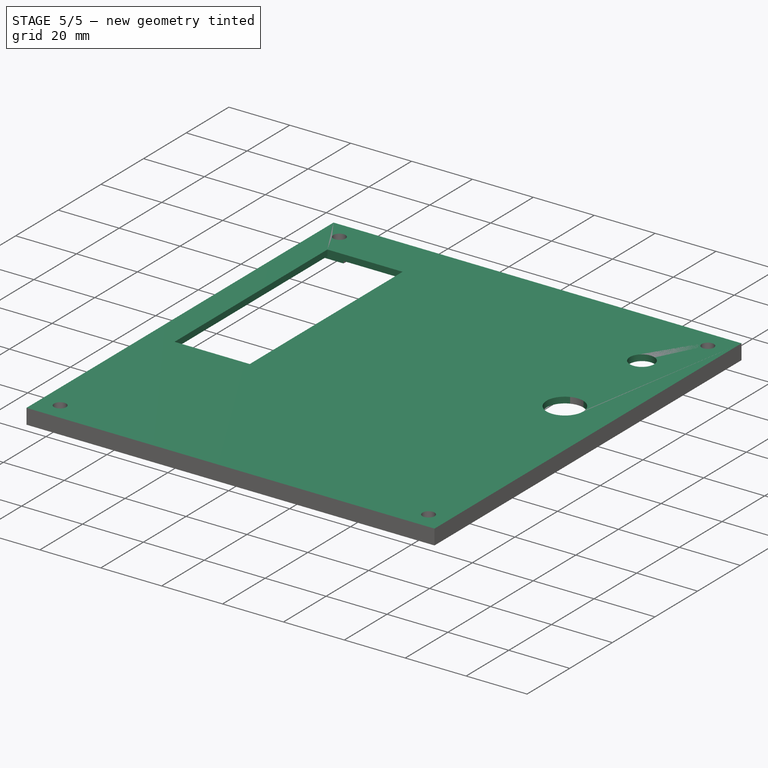
[diagram: stage 5 of 5 — iso view after this stage's code; geometry added in this stage tinted green]
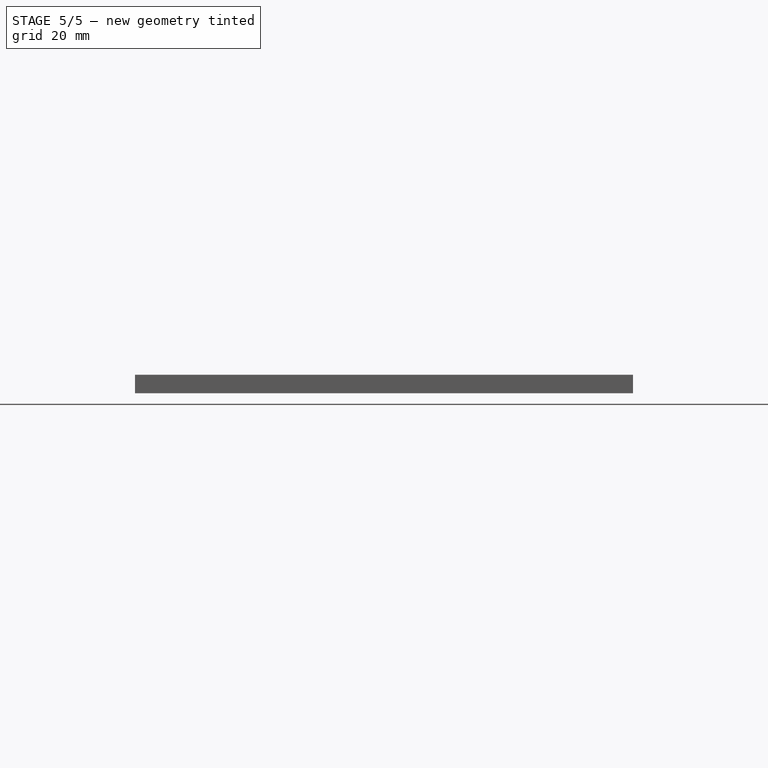
[diagram: stage 5 of 5 — front view after this stage's code; geometry added in this stage tinted green]
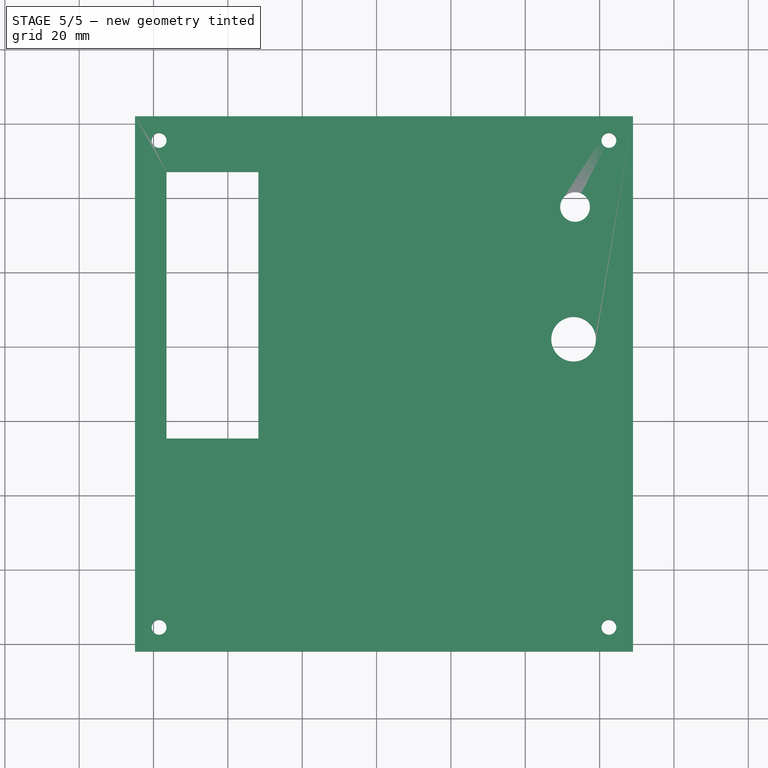
[diagram: stage 5 of 5 — top view after this stage's code; geometry added in this stage tinted green]
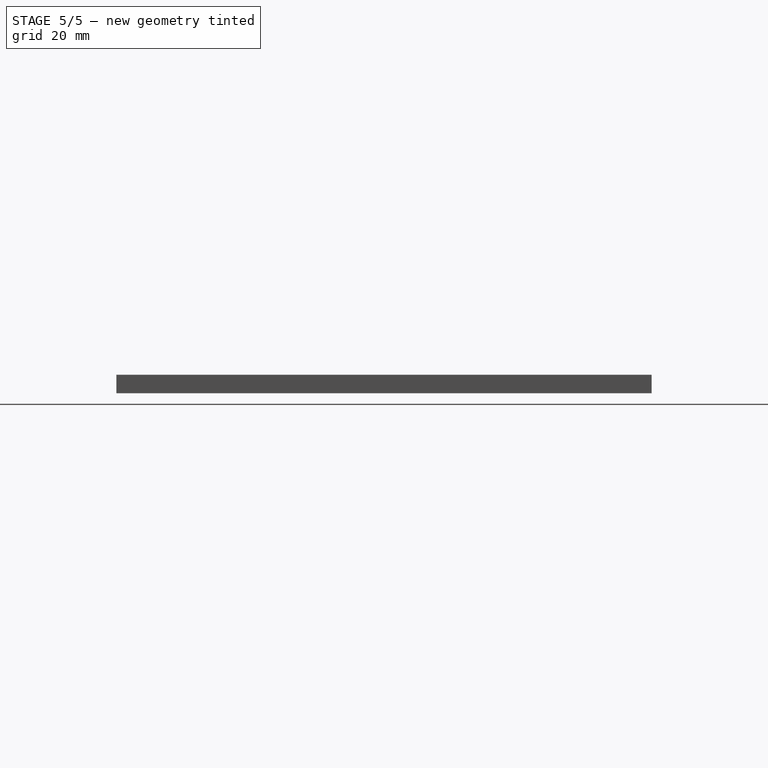
[diagram: stage 5 of 5 — right view after this stage's code; geometry added in this stage tinted green]
FEATURE [PartDesign::Pad] Pad021  label="button-support"
  BaseFeature = -> Pocket001
  Direction = (0,0,1)
  Length = 45
  Length2 = 10
  Profile = -> Sketch008 [Edge36,Edge37,Edge39,Edge38]
  ReferenceAxis = -> Sketch008 [N_Axis]
  Refine = true
  Suppressed = false
  Type = 0
FEATURE [Sketcher::SketchObject] Sketch011
  ArcFitTolerance = 1e-06
  AttachmentSupport = -> [XY_Plane004]
  ExternalGeometry = -> [Pad021]
  FullyConstrained = true
  MakeInternals = false
  MapMode = 5
  sketch-geometry (12):
    g0: ArcOfCircle CenterX=-45 CenterY=-13 CenterZ=0 NormalX=0 NormalY=0 NormalZ=1 AngleXU=0 Radius=15 StartAngle=1.5708 EndAngle=4.71239
    g1: ArcOfCircle CenterX=-45 CenterY=-127 CenterZ=0 NormalX=0 NormalY=0 NormalZ=1 AngleXU=0 Radius=15 StartAngle=1.5708 EndAngle=4.71239
    g2: ArcOfCircle CenterX=89 CenterY=-13 CenterZ=0 NormalX=0 NormalY=0 NormalZ=1 AngleXU=0 Radius=15 StartAngle=4.71239 EndAngle=7.85398
    g3: ArcOfCircle CenterX=89 CenterY=-127 CenterZ=0 NormalX=0 NormalY=0 NormalZ=1 AngleXU=0 Radius=15 StartAngle=4.71239 EndAngle=7.85398
    g4: Circle CenterX=-53 CenterY=-13 CenterZ=0 NormalX=0 NormalY=0 NormalZ=1 AngleXU=0 Radius=2.5
    g5: Circle CenterX=-53 CenterY=-127 CenterZ=0 NormalX=0 NormalY=0 NormalZ=1 AngleXU=0 Radius=2.5
    g6: Circle CenterX=96 CenterY=-13 CenterZ=0 NormalX=0 NormalY=0 NormalZ=1 AngleXU=0 Radius=2.5
    g7: Circle CenterX=96 CenterY=-127 CenterZ=0 NormalX=0 NormalY=0 NormalZ=1 AngleXU=0 Radius=2.5
    g8: LineSegment StartX=-45 StartY=2 StartZ=0 EndX=-45 EndY=-28 EndZ=0
    g9: LineSegment StartX=-45 StartY=-112 StartZ=0 EndX=-45 EndY=-142 EndZ=0
    g10: LineSegment StartX=89 StartY=-142 StartZ=0 EndX=89 EndY=-112 EndZ=0
    g11: LineSegment StartX=89 StartY=2 StartZ=0 EndX=89 EndY=-28 EndZ=0
  constraints (36):
    c: PointOnObject(g0,g-4)
    c: Coincident(g0,g-4)
    c: PointOnObject(g0,g-4)
    c: Radius(g0) = 15
    c: PointOnObject(g1,g-4)
    c: Coincident(g1,g-5)
    c: PointOnObject(g1,g-4)
    c: Radius(g1) = 15
    c: PointOnObject(g2,g-7)
    c: Coincident(g2,g-7)
    c: PointOnObject(g2,g-7)
    c: PointOnObject(g3,g-7)
    c: Coincident(g3,g-7)
    c: PointOnObject(g3,g-7)
    c: Radius(g3) = 15
    c: Radius(g2) = 15
    c: Diameter(g4) = 5
    c: Horizontal(g4,g0)
    c: Distance(g4,g0) = 7
    c: Horizontal(g5,g1)
    c: Vertical(g5,g4)
    c: Diameter(g5) = 5
    c: Diameter(g7) = 5
    c: Horizontal(g7,g3)
    c: Horizontal(g6,g2)
    c: Vertical(g6,g7)
    c: Distance(g6,g2) = 8
    c: Diameter(g6) = 5
    c: Coincident(g8,g0)
    c: Coincident(g8,g0)
    c: Coincident(g9,g1)
    c: Coincident(g9,g1)
    c: Coincident(g10,g3)
    c: Coincident(g10,g3)
    c: Coincident(g11,g2)
    c: Coincident(g11,g2)
FEATURE [PartDesign::Pad] Pad022  label="ears"
  BaseFeature = -> Pad021
  Direction = (0,0,1)
  Length = 2
  Length2 = 10
  Profile = -> Sketch011
  ReferenceAxis = -> Sketch011 [N_Axis]
  Refine = true
  Reversed = true
  Suppressed = false
  Type = 0
FEATURE [PartDesign::Body] Body003  label="Button"
  AllowCompound = false
  Group = -> [Sketch004,Pad011,Pad012,Pad013,Sketch012,Pad023,Pad024]
  Origin = -> Origin003
  Placement = pos=(67,-64,46) rot=(0,0,1;1.5708rad)
  Tip = -> Pad024
FEATURE [PartDesign::SubShapeBinder] Binder004  label="bottop"
  BindCopyOnChange = 0
  BindMode = 0
  ClaimChildren = false
  Context = -> Body005 [Binder004.]
  Fuse = false
  MakeFace = true
  OffsetFill = false
  OffsetIntersection = false
  OffsetJoinType = 0
  OffsetOpenResult = false
  PartialLoad = false
  Refine = true
  Relative = true
  Support = -> [Body004]
  _Version = 2
FEATURE [Sketcher::SketchObject] Sketch013
  ArcFitTolerance = 1e-06
  AttachmentSupport = -> [XY_Plane005]
  ExternalGeometry = -> [Binder004]
  FullyConstrained = true
  MakeInternals = false
  MapMode = 5
  sketch-geometry (20):
    g0: LineSegment StartX=-45 StartY=2 StartZ=0 EndX=-45 EndY=-142 EndZ=0
    g1: LineSegment StartX=-45 StartY=-142 StartZ=0 EndX=89 EndY=-142 EndZ=0
    g2: LineSegment StartX=89 StartY=-142 StartZ=0 EndX=89 EndY=2 EndZ=0
    g3: LineSegment StartX=89 StartY=2 StartZ=0 EndX=-45 EndY=2 EndZ=0
    g4: Circle CenterX=-38.5 CenterY=-4.5 CenterZ=0 NormalX=0 NormalY=0 NormalZ=1 AngleXU=0 Radius=2
    g5: Circle CenterX=82.5 CenterY=-4.5 CenterZ=0 NormalX=0 NormalY=0 NormalZ=1 AngleXU=0 Radius=2
    g6: Circle CenterX=82.5 CenterY=-135.5 CenterZ=0 NormalX=0 NormalY=0 NormalZ=1 AngleXU=0 Radius=2
    g7: Circle CenterX=-38.5 CenterY=-135.5 CenterZ=0 NormalX=0 NormalY=0 NormalZ=1 AngleXU=0 Radius=2
    g8: LineSegment StartX=-43 StartY=-9 StartZ=0 EndX=-43 EndY=-131 EndZ=0
    g9: LineSegment StartX=87 StartY=-131 StartZ=0 EndX=87 EndY=-9 EndZ=0
    g10: LineSegment StartX=-43 StartY=-9 StartZ=0 EndX=-34 EndY=-9 EndZ=0
    g11: LineSegment StartX=-34 StartY=-9 StartZ=0 EndX=-34 EndY=0 EndZ=0
    g12: LineSegment StartX=-34 StartY=0 StartZ=0 EndX=78 EndY=0 EndZ=0
    g13: LineSegment StartX=78 StartY=0 StartZ=0 EndX=78 EndY=-9 EndZ=0
    g14: LineSegment StartX=78 StartY=-9 StartZ=0 EndX=87 EndY=-9 EndZ=0
    g15: LineSegment StartX=-43 StartY=-131 StartZ=0 EndX=-34 EndY=-131 EndZ=0
    g16: LineSegment StartX=-34 StartY=-131 StartZ=0 EndX=-34 EndY=-140 EndZ=0
    g17: LineSegment StartX=-34 StartY=-140 StartZ=0 EndX=78 EndY=-140 EndZ=0
    g18: LineSegment StartX=78 StartY=-140 StartZ=0 EndX=78 EndY=-131 EndZ=0
    g19: LineSegment StartX=78 StartY=-131 StartZ=0 EndX=87 EndY=-131 EndZ=0
  constraints (45):
    c: Coincident(g0,g1)
    c: Coincident(g1,g2)
    c: Coincident(g2,g3)
    c: Coincident(g3,g0)
    c: Vertical(g0)
    c: Vertical(g2)
    c: Horizontal(g1)
    c: Horizontal(g3)
    c: Coincident(g0,g-4)
    c: Coincident(g1,g-7)
    c: Coincident(g4,g-16)
    c: Equal(g4,g-16)
    c: Coincident(g5,g-22)
    c: Equal(g5,g-22)
    c: Coincident(g6,g-10)
    c: Equal(g6,g-10)
    c: Coincident(g7,g-15)
    c: Equal(g7,g-15)
    c: Vertical(g8)
    c: Vertical(g9)
    c: Coincident(g8,g-17)
    c: Coincident(g8,g10)
    c: Coincident(g10,g-18)
    c: Coincident(g10,g11)
    c: Coincident(g11,g-19)
    c: Coincident(g11,g12)
    c: Coincident(g12,g-20)
    c: Coincident(g12,g13)
    c: Coincident(g13,g-21)
    c: Coincident(g13,g14)
    c: Coincident(g14,g9)
    c: Horizontal(g14)
    c: Coincident(g8,g15)
    c: Coincident(g15,g-13)
    c: Horizontal(g15)
    c: Coincident(g15,g16)
    c: Coincident(g16,g-12)
    c: Coincident(g16,g17)
    c: PointOnObject(g17,g-9)
    c: Horizontal(g17)
    c: Coincident(g17,g18)
    c: Coincident(g18,g-9)
    c: Coincident(g18,g19)
    c: Coincident(g19,g9)
    c: Coincident(g9,g-24)
FEATURE [PartDesign::Pad] Pad025
  Direction = (0,0,1)
  Length = 5
  Length2 = 10
  Profile = -> Sketch013 [Edge2,Edge3,Edge4,Edge1]
  ReferenceAxis = -> Sketch013 [N_Axis]
  Refine = true
  Suppressed = false
  Type = 0
FEATURE [PartDesign::Pocket] Pocket002
  BaseFeature = -> Pad025
  Direction = (0,0,-1)
  Length = 5
  Length2 = 5
  Profile = -> Sketch013 [Edge6,Edge5,Edge8,Edge7]
  ReferenceAxis = -> Sketch013 [N_Axis]
  Refine = true
  Reversed = true
  Suppressed = false
  Type = 1
FEATURE [PartDesign::Pocket] Pocket003  label="base-top"
  BaseFeature = -> Pocket002
  Direction = (0,0,-1)
  Length = 0
  Length2 = 5
  Offset = -2
  Profile = -> Sketch013 [Edge15,Edge14,Edge13,Edge12,Edge11,Edge10,Edge9,Edge20,Edge19,Edge18,Edge17,Edge16]
  ReferenceAxis = -> Sketch013 [N_Axis]
  Refine = true
  Suppressed = false
  Type = 3
  UpToFace = -> Pocket002 [Face5]
FEATURE [PartDesign::SubShapeBinder] Binder005
  BindCopyOnChange = 0
  BindMode = 0
  ClaimChildren = false
  Context = -> Body005 [Binder005.]
  Fuse = false
  MakeFace = true
  OffsetFill = false
  OffsetIntersection = false
  OffsetJoinType = 0
  OffsetOpenResult = false
  PartialLoad = false
  Refine = true
  Relative = true
  Support = -> [Body003]
  _Version = 2
FEATURE [PartDesign::SubShapeBinder] Binder006
  BindCopyOnChange = 0
  BindMode = 0
  ClaimChildren = false
  Context = -> Body005 [Binder006.]
  Fuse = false
  MakeFace = true
  OffsetFill = false
  OffsetIntersection = false
  OffsetJoinType = 0
  OffsetOpenResult = false
  PartialLoad = false
  Refine = true
  Relative = true
  Support = -> [Body002]
  _Version = 2
FEATURE [PartDesign::SubShapeBinder] Binder007
  BindCopyOnChange = 0
  BindMode = 0
  ClaimChildren = false
  Context = -> Body005 [Binder007.]
  Fuse = false
  MakeFace = true
  OffsetFill = false
  OffsetIntersection = false
  OffsetJoinType = 0
  OffsetOpenResult = false
  PartialLoad = false
  Refine = true
  Relative = true
  Support = -> [Body001]
  _Version = 2
FEATURE [Sketcher::SketchObject] Sketch014
  ArcFitTolerance = 1e-06
  AttachmentSupport = -> [XY_Plane005]
  ExternalGeometry = -> [Binder007,Binder005,Binder006]
  FullyConstrained = true
  MakeInternals = false
  MapMode = 5
  sketch-geometry (6):
    g0: LineSegment StartX=-36.5 StartY=-13 StartZ=0 EndX=-36.5 EndY=-84.7 EndZ=0
    g1: LineSegment StartX=-36.5 StartY=-84.7 StartZ=0 EndX=-11.8 EndY=-84.7 EndZ=0
    g2: LineSegment StartX=-11.8 StartY=-84.7 StartZ=0 EndX=-11.8 EndY=-13 EndZ=0
    g3: LineSegment StartX=-11.8 StartY=-13 StartZ=0 EndX=-36.5 EndY=-13 EndZ=0
    g4: Circle CenterX=73 CenterY=-58 CenterZ=0 NormalX=0 NormalY=0 NormalZ=1 AngleXU=0 Radius=6
    g5: Circle CenterX=73.4 CenterY=-22.4 CenterZ=0 NormalX=0 NormalY=0 NormalZ=1 AngleXU=0 Radius=4
  constraints (14):
    c: Coincident(g0,g1)
    c: Coincident(g1,g2)
    c: Coincident(g2,g3)
    c: Coincident(g3,g0)
    c: Vertical(g0)
    c: Vertical(g2)
    c: Horizontal(g1)
    c: Horizontal(g3)
    c: Coincident(g0,g-4)
    c: Coincident(g1,g-6)
    c: Coincident(g4,g-7)
    c: Equal(g4,g-7)
    c: Coincident(g5,g-8)
    c: Equal(g5,g-8)
FEATURE [PartDesign::Pocket] Pocket004
  BaseFeature = -> Pocket003
  Direction = (0,0,-1)
  Length = 5
  Length2 = 5
  Profile = -> Sketch014
  ReferenceAxis = -> Sketch014 [N_Axis]
  Refine = true
  Reversed = true
  Suppressed = false
  Type = 0
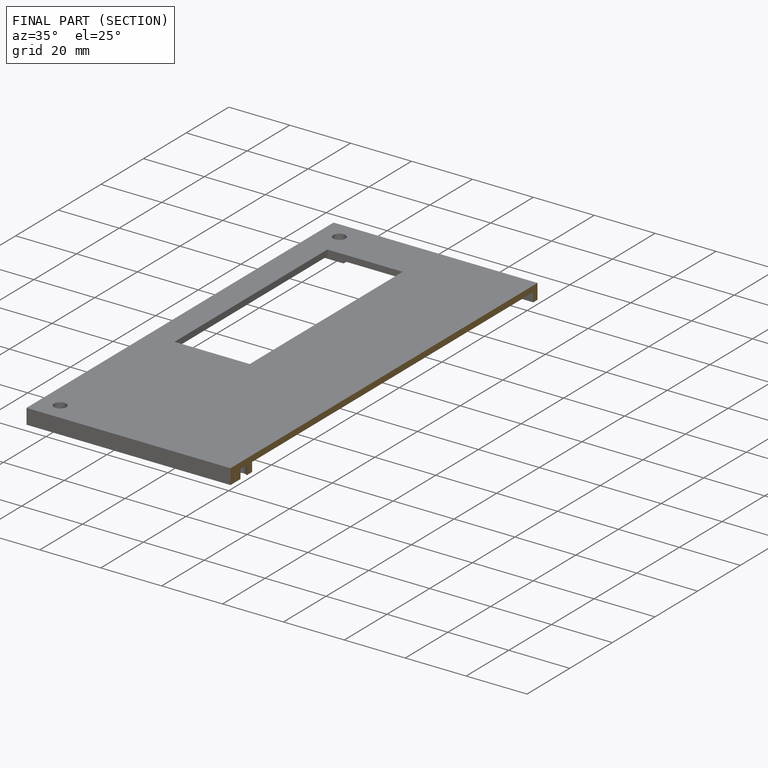
[diagram: finished part — half-section view (interior)]
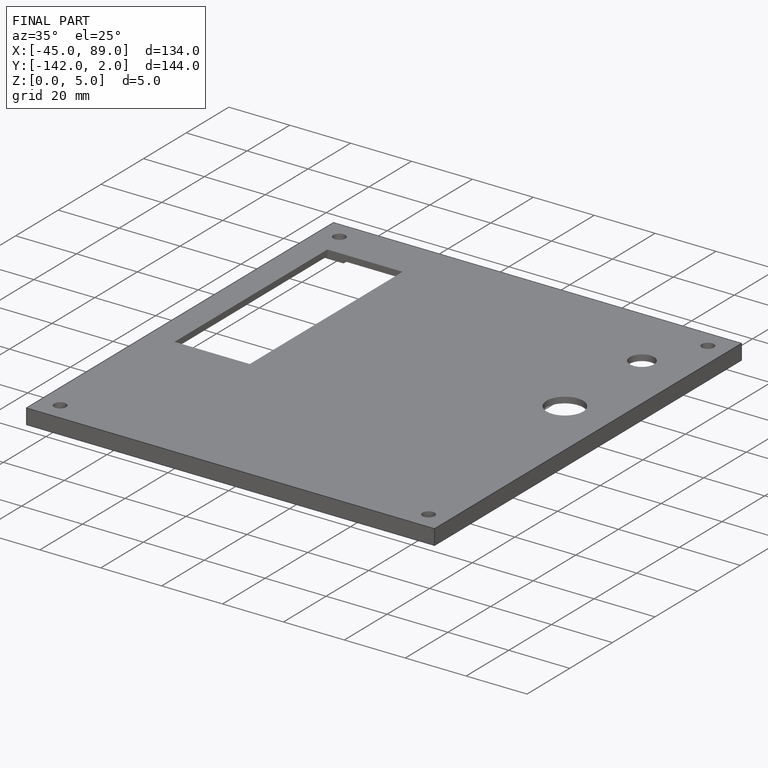
[diagram: finished part — iso view with bounding-box wireframe]
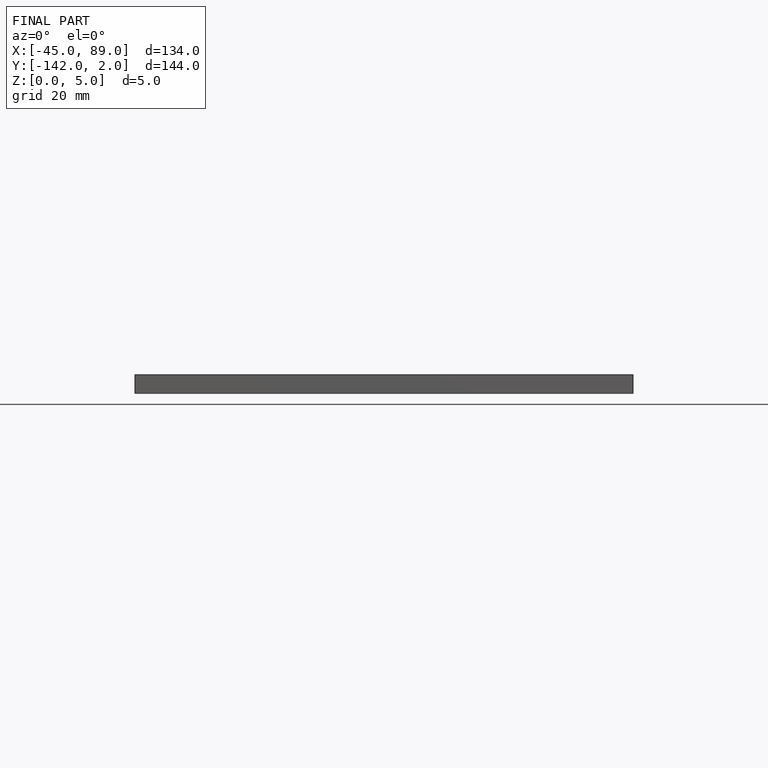
[diagram: finished part — front view with bounding-box wireframe]
